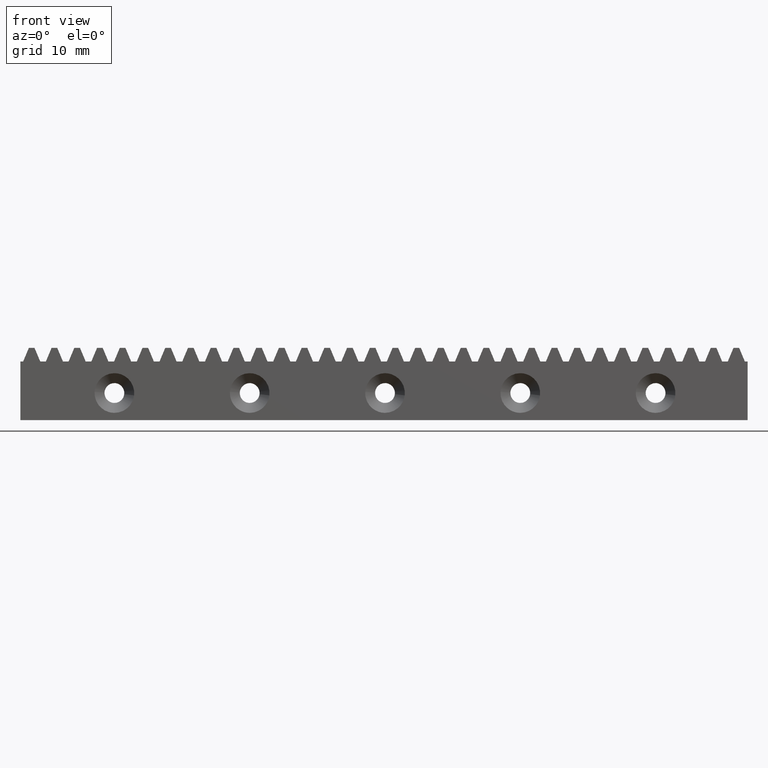
[diagram: clean part render]
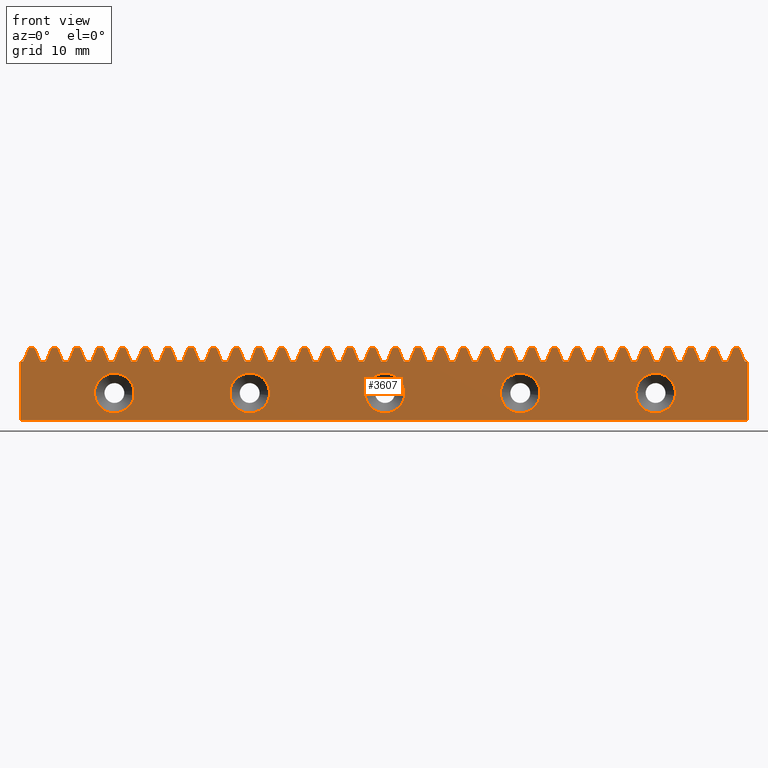
[diagram: same view with one face highlighted and labeled with its STEP entity id]
A machine part, front view. The second image highlights one B-rep face of the part: STEP entity #3607.
In plain terms, the highlighted face is a freeform B-spline surface patch.
Its self-contained STEP definition (entity closure, byte-faithful):
#268=CARTESIAN_POINT('',(-27.815379017619350,-3.000000032600222,2.740324612674224));
#269=VERTEX_POINT('',#268);
#275=CARTESIAN_POINT('',(-30.0,-3.000000000000085,5.200000000000000));
#276=VERTEX_POINT('',#275);
#277=CARTESIAN_POINT('',(-27.815379017619350,-3.000000032600222,2.740324612674225));
#278=CARTESIAN_POINT('',(-27.800000000000001,-3.000000000000085,2.869706868822044));
#279=CARTESIAN_POINT('',(-27.800000000000001,-3.000000000000085,3.0));
#280=CARTESIAN_POINT('',(-27.799999999999997,-3.000000000000085,5.199999999999999));
#281=CARTESIAN_POINT('',(-30.0,-3.000000000000085,5.200000000000000));
#289=(BOUNDED_CURVE()B_SPLINE_CURVE(2,(#277,#278,#279,#280,#281),.UNSPECIFIED.,.F.,.U.)B_SPLINE_CURVE_WITH_KNOTS((3,2,3),(0.229562463113299,0.250000000000000,0.500000000000000),.UNSPECIFIED.)CURVE()GEOMETRIC_REPRESENTATION_ITEM()RATIONAL_B_SPLINE_CURVE((0.956026733798864,0.976055936146541,1.0,0.707106781186548,1.0))REPRESENTATION_ITEM(''));
#290=EDGE_CURVE('',#269,#276,#289,.T.);
#292=CARTESIAN_POINT('',(-32.195896556625840,-3.000000000181611,3.134306788352150));
#293=VERTEX_POINT('',#292);
#294=CARTESIAN_POINT('',(-30.0,-3.000000000000085,5.200000000000000));
#295=CARTESIAN_POINT('',(-32.069553344615954,-3.000000000000084,5.199999999999999));
#296=CARTESIAN_POINT('',(-32.195896556625840,-3.000000000181611,3.134306788352150));
#304=(BOUNDED_CURVE()B_SPLINE_CURVE(2,(#294,#295,#296),.UNSPECIFIED.,.F.,.U.)B_SPLINE_CURVE_WITH_KNOTS((3,3),(0.500000000000000,0.739332962027550),.UNSPECIFIED.)CURVE()GEOMETRIC_REPRESENTATION_ITEM()RATIONAL_B_SPLINE_CURVE((1.0,0.719603993534373,0.976072041213662))REPRESENTATION_ITEM(''));
#305=EDGE_CURVE('',#276,#293,#304,.T.);
#338=CARTESIAN_POINT('',(-30.0,-3.000000000000085,0.800000000000000));
#339=VERTEX_POINT('',#338);
#340=CARTESIAN_POINT('',(-32.195896556625840,-3.000000000181610,3.134306788352150));
#341=CARTESIAN_POINT('',(-32.200000000000010,-3.000000000000086,3.067216080625104));
#342=CARTESIAN_POINT('',(-32.200000000000003,-3.000000000000085,3.0));
#343=CARTESIAN_POINT('',(-32.200000000000010,-3.000000000000085,0.800000000000000));
#344=CARTESIAN_POINT('',(-30.0,-3.000000000000085,0.800000000000000));
#352=(BOUNDED_CURVE()B_SPLINE_CURVE(2,(#340,#341,#342,#343,#344),.UNSPECIFIED.,.F.,.U.)B_SPLINE_CURVE_WITH_KNOTS((3,2,3),(0.739332962027550,0.750000000000000,1.0),.UNSPECIFIED.)CURVE()GEOMETRIC_REPRESENTATION_ITEM()RATIONAL_B_SPLINE_CURVE((0.976072041213663,0.987502787652175,1.0,0.707106781186548,1.0))REPRESENTATION_ITEM(''));
#353=EDGE_CURVE('',#293,#339,#352,.T.);
#355=CARTESIAN_POINT('',(-30.0,-3.000000000000085,0.800000000000000));
#356=CARTESIAN_POINT('',(-28.046016164023627,-3.000000000000084,0.800000000000000));
#357=CARTESIAN_POINT('',(-27.815379017619346,-3.000000032600222,2.740324612674224));
#365=(BOUNDED_CURVE()B_SPLINE_CURVE(2,(#355,#356,#357),.UNSPECIFIED.,.F.,.U.)B_SPLINE_CURVE_WITH_KNOTS((3,3),(0.0,0.229562463113299),.UNSPECIFIED.)CURVE()GEOMETRIC_REPRESENTATION_ITEM()RATIONAL_B_SPLINE_CURVE((1.0,0.731050845040006,0.956026733798864))REPRESENTATION_ITEM(''));
#366=EDGE_CURVE('',#339,#269,#365,.T.);
#596=CARTESIAN_POINT('',(-12.815379017619350,-3.000000032600219,2.740324612674225));
#597=VERTEX_POINT('',#596);
#603=CARTESIAN_POINT('',(-15.0,-3.000000000000085,5.200000000000000));
#604=VERTEX_POINT('',#603);
#605=CARTESIAN_POINT('',(-12.815379017619351,-3.000000032600220,2.740324612674225));
#606=CARTESIAN_POINT('',(-12.799999999999999,-3.000000000000084,2.869706868822044));
#607=CARTESIAN_POINT('',(-12.800000000000001,-3.000000000000085,3.0));
#608=CARTESIAN_POINT('',(-12.799999999999999,-3.000000000000085,5.199999999999999));
#609=CARTESIAN_POINT('',(-15.0,-3.000000000000085,5.200000000000000));
#617=(BOUNDED_CURVE()B_SPLINE_CURVE(2,(#605,#606,#607,#608,#609),.UNSPECIFIED.,.F.,.U.)B_SPLINE_CURVE_WITH_KNOTS((3,2,3),(0.229562463113299,0.250000000000000,0.500000000000000),.UNSPECIFIED.)CURVE()GEOMETRIC_REPRESENTATION_ITEM()RATIONAL_B_SPLINE_CURVE((0.956026733798864,0.976055936146542,1.0,0.707106781186548,1.0))REPRESENTATION_ITEM(''));
#618=EDGE_CURVE('',#597,#604,#617,.T.);
#620=CARTESIAN_POINT('',(-17.195896556625851,-3.000000000181612,3.134306788352149));
#621=VERTEX_POINT('',#620);
#622=CARTESIAN_POINT('',(-15.0,-3.000000000000085,5.200000000000000));
#623=CARTESIAN_POINT('',(-17.069553344615954,-3.000000000000084,5.199999999999999));
#624=CARTESIAN_POINT('',(-17.195896556625847,-3.000000000181612,3.134306788352149));
#632=(BOUNDED_CURVE()B_SPLINE_CURVE(2,(#622,#623,#624),.UNSPECIFIED.,.F.,.U.)B_SPLINE_CURVE_WITH_KNOTS((3,3),(0.500000000000000,0.739332962027550),.UNSPECIFIED.)CURVE()GEOMETRIC_REPRESENTATION_ITEM()RATIONAL_B_SPLINE_CURVE((1.0,0.719603993534373,0.976072041213662))REPRESENTATION_ITEM(''));
#633=EDGE_CURVE('',#604,#621,#632,.T.);
#666=CARTESIAN_POINT('',(-15.0,-3.000000000000085,0.800000000000000));
#667=VERTEX_POINT('',#666);
#668=CARTESIAN_POINT('',(-17.195896556625851,-3.000000000181612,3.134306788352150));
#669=CARTESIAN_POINT('',(-17.199999999999999,-3.000000000000085,3.067216080625104));
#670=CARTESIAN_POINT('',(-17.199999999999999,-3.000000000000085,3.0));
#671=CARTESIAN_POINT('',(-17.200000000000003,-3.000000000000085,0.800000000000000));
#672=CARTESIAN_POINT('',(-15.0,-3.000000000000085,0.800000000000000));
#680=(BOUNDED_CURVE()B_SPLINE_CURVE(2,(#668,#669,#670,#671,#672),.UNSPECIFIED.,.F.,.U.)B_SPLINE_CURVE_WITH_KNOTS((3,2,3),(0.739332962027550,0.750000000000000,1.0),.UNSPECIFIED.)CURVE()GEOMETRIC_REPRESENTATION_ITEM()RATIONAL_B_SPLINE_CURVE((0.976072041213663,0.987502787652176,1.0,0.707106781186548,1.0))REPRESENTATION_ITEM(''));
#681=EDGE_CURVE('',#621,#667,#680,.T.);
#683=CARTESIAN_POINT('',(-15.0,-3.000000000000085,0.800000000000000));
#684=CARTESIAN_POINT('',(-13.046016164023623,-3.000000000000084,0.800000000000000));
#685=CARTESIAN_POINT('',(-12.815379017619351,-3.000000032600220,2.740324612674225));
#693=(BOUNDED_CURVE()B_SPLINE_CURVE(2,(#683,#684,#685),.UNSPECIFIED.,.F.,.U.)B_SPLINE_CURVE_WITH_KNOTS((3,3),(0.0,0.229562463113299),.UNSPECIFIED.)CURVE()GEOMETRIC_REPRESENTATION_ITEM()RATIONAL_B_SPLINE_CURVE((1.0,0.731050845040006,0.956026733798864))REPRESENTATION_ITEM(''));
#694=EDGE_CURVE('',#667,#597,#693,.T.);
#924=CARTESIAN_POINT('',(2.184620982380650,-3.000000032600220,2.740324612674225));
#925=VERTEX_POINT('',#924);
#931=CARTESIAN_POINT('',(0.0,-3.000000000000085,5.200000000000000));
#932=VERTEX_POINT('',#931);
#933=CARTESIAN_POINT('',(2.184620982380650,-3.000000032600220,2.740324612674225));
#934=CARTESIAN_POINT('',(2.200000000000000,-3.000000000000084,2.869706868822044));
#935=CARTESIAN_POINT('',(2.200000000000000,-3.000000000000085,3.0));
#936=CARTESIAN_POINT('',(2.200000000000001,-3.000000000000085,5.199999999999999));
#937=CARTESIAN_POINT('',(0.0,-3.000000000000085,5.200000000000000));
#945=(BOUNDED_CURVE()B_SPLINE_CURVE(2,(#933,#934,#935,#936,#937),.UNSPECIFIED.,.F.,.U.)B_SPLINE_CURVE_WITH_KNOTS((3,2,3),(0.229562463113299,0.250000000000000,0.500000000000000),.UNSPECIFIED.)CURVE()GEOMETRIC_REPRESENTATION_ITEM()RATIONAL_B_SPLINE_CURVE((0.956026733798864,0.976055936146542,1.0,0.707106781186548,1.0))REPRESENTATION_ITEM(''));
#946=EDGE_CURVE('',#925,#932,#945,.T.);
#948=CARTESIAN_POINT('',(-2.195896556625845,-3.000000000181611,3.134306788352150));
#949=VERTEX_POINT('',#948);
#950=CARTESIAN_POINT('',(0.0,-3.000000000000085,5.200000000000000));
#951=CARTESIAN_POINT('',(-2.069553344615954,-3.000000000000084,5.199999999999999));
#952=CARTESIAN_POINT('',(-2.195896556625845,-3.000000000181611,3.134306788352150));
#960=(BOUNDED_CURVE()B_SPLINE_CURVE(2,(#950,#951,#952),.UNSPECIFIED.,.F.,.U.)B_SPLINE_CURVE_WITH_KNOTS((3,3),(0.500000000000000,0.739332962027550),.UNSPECIFIED.)CURVE()GEOMETRIC_REPRESENTATION_ITEM()RATIONAL_B_SPLINE_CURVE((1.0,0.719603993534373,0.976072041213662))REPRESENTATION_ITEM(''));
#961=EDGE_CURVE('',#932,#949,#960,.T.);
#994=CARTESIAN_POINT('',(0.0,-3.000000000000085,0.800000000000000));
#995=VERTEX_POINT('',#994);
#996=CARTESIAN_POINT('',(-2.195896556625845,-3.000000000181610,3.134306788352150));
#997=CARTESIAN_POINT('',(-2.200000000000000,-3.000000000000086,3.067216080625104));
#998=CARTESIAN_POINT('',(-2.200000000000000,-3.000000000000085,3.0));
#999=CARTESIAN_POINT('',(-2.200000000000001,-3.000000000000085,0.800000000000000));
#1000=CARTESIAN_POINT('',(0.0,-3.000000000000085,0.800000000000000));
#1008=(BOUNDED_CURVE()B_SPLINE_CURVE(2,(#996,#997,#998,#999,#1000),.UNSPECIFIED.,.F.,.U.)B_SPLINE_CURVE_WITH_KNOTS((3,2,3),(0.739332962027550,0.750000000000000,1.0),.UNSPECIFIED.)CURVE()GEOMETRIC_REPRESENTATION_ITEM()RATIONAL_B_SPLINE_CURVE((0.976072041213663,0.987502787652175,1.0,0.707106781186548,1.0))REPRESENTATION_ITEM(''));
#1009=EDGE_CURVE('',#949,#995,#1008,.T.);
#1011=CARTESIAN_POINT('',(0.0,-3.000000000000085,0.800000000000000));
#1012=CARTESIAN_POINT('',(1.953983835976376,-3.000000000000084,0.800000000000000));
#1013=CARTESIAN_POINT('',(2.184620982380650,-3.000000032600220,2.740324612674225));
#1021=(BOUNDED_CURVE()B_SPLINE_CURVE(2,(#1011,#1012,#1013),.UNSPECIFIED.,.F.,.U.)B_SPLINE_CURVE_WITH_KNOTS((3,3),(0.0,0.229562463113299),.UNSPECIFIED.)CURVE()GEOMETRIC_REPRESENTATION_ITEM()RATIONAL_B_SPLINE_CURVE((1.0,0.731050845040006,0.956026733798864))REPRESENTATION_ITEM(''));
#1022=EDGE_CURVE('',#995,#925,#1021,.T.);
#1252=CARTESIAN_POINT('',(17.184620982380650,-3.000000032600219,2.740324612674224));
#1253=VERTEX_POINT('',#1252);
#1259=CARTESIAN_POINT('',(15.0,-3.000000000000085,5.200000000000000));
#1260=VERTEX_POINT('',#1259);
#1261=CARTESIAN_POINT('',(17.184620982380650,-3.000000032600219,2.740324612674225));
#1262=CARTESIAN_POINT('',(17.199999999999996,-3.000000000000085,2.869706868822044));
#1263=CARTESIAN_POINT('',(17.199999999999999,-3.000000000000085,3.0));
#1264=CARTESIAN_POINT('',(17.200000000000003,-3.000000000000085,5.199999999999999));
#1265=CARTESIAN_POINT('',(15.0,-3.000000000000085,5.200000000000000));
#1273=(BOUNDED_CURVE()B_SPLINE_CURVE(2,(#1261,#1262,#1263,#1264,#1265),.UNSPECIFIED.,.F.,.U.)B_SPLINE_CURVE_WITH_KNOTS((3,2,3),(0.229562463113299,0.250000000000000,0.500000000000000),.UNSPECIFIED.)CURVE()GEOMETRIC_REPRESENTATION_ITEM()RATIONAL_B_SPLINE_CURVE((0.956026733798864,0.976055936146541,1.0,0.707106781186548,1.0))REPRESENTATION_ITEM(''));
#1274=EDGE_CURVE('',#1253,#1260,#1273,.T.);
#1276=CARTESIAN_POINT('',(12.804103443374149,-3.000000000181611,3.134306788352150));
#1277=VERTEX_POINT('',#1276);
#1278=CARTESIAN_POINT('',(15.0,-3.000000000000085,5.200000000000000));
#1279=CARTESIAN_POINT('',(12.930446655384046,-3.000000000000084,5.199999999999999));
#1280=CARTESIAN_POINT('',(12.804103443374157,-3.000000000181611,3.134306788352150));
#1288=(BOUNDED_CURVE()B_SPLINE_CURVE(2,(#1278,#1279,#1280),.UNSPECIFIED.,.F.,.U.)B_SPLINE_CURVE_WITH_KNOTS((3,3),(0.500000000000000,0.739332962027550),.UNSPECIFIED.)CURVE()GEOMETRIC_REPRESENTATION_ITEM()RATIONAL_B_SPLINE_CURVE((1.0,0.719603993534373,0.976072041213662))REPRESENTATION_ITEM(''));
#1289=EDGE_CURVE('',#1260,#1277,#1288,.T.);
#1322=CARTESIAN_POINT('',(15.0,-3.000000000000085,0.800000000000000));
#1323=VERTEX_POINT('',#1322);
#1324=CARTESIAN_POINT('',(12.804103443374153,-3.000000000181612,3.134306788352150));
#1325=CARTESIAN_POINT('',(12.800000000000004,-3.000000000000086,3.067216080625104));
#1326=CARTESIAN_POINT('',(12.800000000000001,-3.000000000000085,3.0));
#1327=CARTESIAN_POINT('',(12.799999999999999,-3.000000000000085,0.800000000000000));
#1328=CARTESIAN_POINT('',(15.0,-3.000000000000085,0.800000000000000));
#1336=(BOUNDED_CURVE()B_SPLINE_CURVE(2,(#1324,#1325,#1326,#1327,#1328),.UNSPECIFIED.,.F.,.U.)B_SPLINE_CURVE_WITH_KNOTS((3,2,3),(0.739332962027550,0.750000000000000,1.0),.UNSPECIFIED.)CURVE()GEOMETRIC_REPRESENTATION_ITEM()RATIONAL_B_SPLINE_CURVE((0.976072041213663,0.987502787652175,1.0,0.707106781186548,1.0))REPRESENTATION_ITEM(''));
#1337=EDGE_CURVE('',#1277,#1323,#1336,.T.);
#1339=CARTESIAN_POINT('',(15.0,-3.000000000000085,0.800000000000000));
#1340=CARTESIAN_POINT('',(16.953983835976384,-3.000000000000084,0.800000000000000));
#1341=CARTESIAN_POINT('',(17.184620982380657,-3.000000032600220,2.740324612674224));
#1349=(BOUNDED_CURVE()B_SPLINE_CURVE(2,(#1339,#1340,#1341),.UNSPECIFIED.,.F.,.U.)B_SPLINE_CURVE_WITH_KNOTS((3,3),(0.0,0.229562463113299),.UNSPECIFIED.)CURVE()GEOMETRIC_REPRESENTATION_ITEM()RATIONAL_B_SPLINE_CURVE((1.0,0.731050845040006,0.956026733798864))REPRESENTATION_ITEM(''));
#1350=EDGE_CURVE('',#1323,#1253,#1349,.T.);
#1580=CARTESIAN_POINT('',(32.184620982380650,-3.000000032600220,2.740324612674225));
#1581=VERTEX_POINT('',#1580);
#1587=CARTESIAN_POINT('',(30.0,-3.000000000000085,5.200000000000000));
#1588=VERTEX_POINT('',#1587);
#1589=CARTESIAN_POINT('',(32.184620982380650,-3.000000032600220,2.740324612674225));
#1590=CARTESIAN_POINT('',(32.200000000000010,-3.000000000000085,2.869706868822044));
#1591=CARTESIAN_POINT('',(32.200000000000003,-3.000000000000085,3.0));
#1592=CARTESIAN_POINT('',(32.200000000000010,-3.000000000000085,5.199999999999999));
#1593=CARTESIAN_POINT('',(30.0,-3.000000000000085,5.200000000000000));
#1601=(BOUNDED_CURVE()B_SPLINE_CURVE(2,(#1589,#1590,#1591,#1592,#1593),.UNSPECIFIED.,.F.,.U.)B_SPLINE_CURVE_WITH_KNOTS((3,2,3),(0.229562463113299,0.250000000000000,0.500000000000000),.UNSPECIFIED.)CURVE()GEOMETRIC_REPRESENTATION_ITEM()RATIONAL_B_SPLINE_CURVE((0.956026733798864,0.976055936146541,1.0,0.707106781186548,1.0))REPRESENTATION_ITEM(''));
#1602=EDGE_CURVE('',#1581,#1588,#1601,.T.);
#1604=CARTESIAN_POINT('',(27.804103443374149,-3.000000000181613,3.134306788352150));
#1605=VERTEX_POINT('',#1604);
#1606=CARTESIAN_POINT('',(30.0,-3.000000000000085,5.200000000000000));
#1607=CARTESIAN_POINT('',(27.930446655384038,-3.000000000000084,5.199999999999999));
#1608=CARTESIAN_POINT('',(27.804103443374149,-3.000000000181613,3.134306788352150));
#1616=(BOUNDED_CURVE()B_SPLINE_CURVE(2,(#1606,#1607,#1608),.UNSPECIFIED.,.F.,.U.)B_SPLINE_CURVE_WITH_KNOTS((3,3),(0.500000000000000,0.739332962027550),.UNSPECIFIED.)CURVE()GEOMETRIC_REPRESENTATION_ITEM()RATIONAL_B_SPLINE_CURVE((1.0,0.719603993534373,0.976072041213662))REPRESENTATION_ITEM(''));
#1617=EDGE_CURVE('',#1588,#1605,#1616,.T.);
#1650=CARTESIAN_POINT('',(30.0,-3.000000000000085,0.800000000000000));
#1651=VERTEX_POINT('',#1650);
#1652=CARTESIAN_POINT('',(27.804103443374157,-3.000000000181613,3.134306788352150));
#1653=CARTESIAN_POINT('',(27.800000000000001,-3.000000000000086,3.067216080625104));
#1654=CARTESIAN_POINT('',(27.800000000000001,-3.000000000000085,3.0));
#1655=CARTESIAN_POINT('',(27.799999999999997,-3.000000000000085,0.800000000000000));
#1656=CARTESIAN_POINT('',(30.0,-3.000000000000085,0.800000000000000));
#1664=(BOUNDED_CURVE()B_SPLINE_CURVE(2,(#1652,#1653,#1654,#1655,#1656),.UNSPECIFIED.,.F.,.U.)B_SPLINE_CURVE_WITH_KNOTS((3,2,3),(0.739332962027550,0.750000000000000,1.0),.UNSPECIFIED.)CURVE()GEOMETRIC_REPRESENTATION_ITEM()RATIONAL_B_SPLINE_CURVE((0.976072041213663,0.987502787652175,1.0,0.707106781186548,1.0))REPRESENTATION_ITEM(''));
#1665=EDGE_CURVE('',#1605,#1651,#1664,.T.);
#1667=CARTESIAN_POINT('',(30.0,-3.000000000000085,0.800000000000000));
#1668=CARTESIAN_POINT('',(31.953983835976384,-3.000000000000084,0.800000000000000));
#1669=CARTESIAN_POINT('',(32.184620982380650,-3.000000032600220,2.740324612674225));
#1677=(BOUNDED_CURVE()B_SPLINE_CURVE(2,(#1667,#1668,#1669),.UNSPECIFIED.,.F.,.U.)B_SPLINE_CURVE_WITH_KNOTS((3,3),(0.0,0.229562463113299),.UNSPECIFIED.)CURVE()GEOMETRIC_REPRESENTATION_ITEM()RATIONAL_B_SPLINE_CURVE((1.0,0.731050845040006,0.956026733798864))REPRESENTATION_ITEM(''));
#1678=EDGE_CURVE('',#1651,#1581,#1677,.T.);
#2646=CARTESIAN_POINT('',(-44.457968436363323,-3.000000000000085,8.399608008602465));
#2647=CARTESIAN_POINT('',(44.237976320274591,-3.000000000000085,8.399608008602465));
#2648=CARTESIAN_POINT('',(-44.457968436363323,-3.000000000000085,-0.399600580807829));
#2649=CARTESIAN_POINT('',(44.237976320274591,-3.000000000000085,-0.399600580807829));
#2650=B_SPLINE_SURFACE_WITH_KNOTS('',1,1,((#2646,#2648),(#2647,#2649)),.UNSPECIFIED.,.F.,.F.,.U.,(2,2),(2,2),(0.0,88.695944756637914),(0.0,8.799208589410295),.UNSPECIFIED.);
#2651=CARTESIAN_POINT('',(-40.430000999999997,-3.000000000000115,6.500000000000000));
#2652=VERTEX_POINT('',#2651);
#2653=CARTESIAN_POINT('',(-40.430000999999997,-3.000000000000115,0.0));
#2654=VERTEX_POINT('',#2653);
#2655=CARTESIAN_POINT('',(-40.430000999999997,-3.000000000000115,6.500000000000000));
#2656=CARTESIAN_POINT('',(-40.430000999999997,-3.000000000000115,0.0));
#2657=QUASI_UNIFORM_CURVE('',1,(#2655,#2656),.UNSPECIFIED.,.F.,.U.);
#2658=EDGE_CURVE('',#2652,#2654,#2657,.T.);
#2659=ORIENTED_EDGE('',*,*,#2658,.T.);
#2660=CARTESIAN_POINT('',(40.210005999999893,-3.000000000000115,0.0));
#2661=VERTEX_POINT('',#2660);
#2662=CARTESIAN_POINT('',(-40.430000999999997,-3.000000000000115,0.0));
#2663=CARTESIAN_POINT('',(40.210005999999893,-3.000000000000115,0.0));
#2664=QUASI_UNIFORM_CURVE('',1,(#2662,#2663),.UNSPECIFIED.,.F.,.U.);
#2665=EDGE_CURVE('',#2654,#2661,#2664,.T.);
#2666=ORIENTED_EDGE('',*,*,#2665,.T.);
#2667=CARTESIAN_POINT('',(40.210005999999893,-3.000000000000115,6.500000000000000));
#2668=VERTEX_POINT('',#2667);
#2669=CARTESIAN_POINT('',(40.210005999999893,-3.000000000000115,0.0));
#2670=CARTESIAN_POINT('',(40.210005999999893,-3.000000000000115,6.500000000000000));
#2671=QUASI_UNIFORM_CURVE('',1,(#2669,#2670),.UNSPECIFIED.,.F.,.U.);
#2672=EDGE_CURVE('',#2661,#2668,#2671,.T.);
#2673=ORIENTED_EDGE('',*,*,#2672,.T.);
#2674=CARTESIAN_POINT('',(39.895003999999901,-3.000000000000115,6.500000000000000));
#2675=VERTEX_POINT('',#2674);
#2676=CARTESIAN_POINT('',(40.210005999999893,-3.000000000000115,6.500000000000000));
#2677=CARTESIAN_POINT('',(39.895003999999901,-3.000000000000115,6.500000000000000));
#2678=QUASI_UNIFORM_CURVE('',1,(#2676,#2677),.UNSPECIFIED.,.F.,.U.);
#2679=EDGE_CURVE('',#2668,#2675,#2678,.T.);
#2680=ORIENTED_EDGE('',*,*,#2679,.T.);
#2681=CARTESIAN_POINT('',(39.264998999999797,-3.000000000000115,8.0));
#2682=VERTEX_POINT('',#2681);
#2683=CARTESIAN_POINT('',(39.895003999999901,-3.000000000000115,6.500000000000000));
#2684=CARTESIAN_POINT('',(39.264998999999797,-3.000000000000115,8.0));
#2685=QUASI_UNIFORM_CURVE('',1,(#2683,#2684),.UNSPECIFIED.,.F.,.U.);
#2686=EDGE_CURVE('',#2675,#2682,#2685,.T.);
#2687=ORIENTED_EDGE('',*,*,#2686,.T.);
#2688=CARTESIAN_POINT('',(38.635008999999897,-3.000000000000115,8.0));
#2689=VERTEX_POINT('',#2688);
#2690=CARTESIAN_POINT('',(39.264998999999797,-3.000000000000115,8.0));
#2691=CARTESIAN_POINT('',(38.635008999999897,-3.000000000000115,8.0));
#2692=QUASI_UNIFORM_CURVE('',1,(#2690,#2691),.UNSPECIFIED.,.F.,.U.);
#2693=EDGE_CURVE('',#2682,#2689,#2692,.T.);
#2694=ORIENTED_EDGE('',*,*,#2693,.T.);
#2695=CARTESIAN_POINT('',(38.005004999999997,-3.000000000000115,6.500007999999800));
#2696=VERTEX_POINT('',#2695);
#2697=CARTESIAN_POINT('',(38.635008999999897,-3.000000000000115,8.0));
#2698=CARTESIAN_POINT('',(38.005004999999997,-3.000000000000115,6.500007999999800));
#2699=QUASI_UNIFORM_CURVE('',1,(#2697,#2698),.UNSPECIFIED.,.F.,.U.);
#2700=EDGE_CURVE('',#2689,#2696,#2699,.T.);
#2701=ORIENTED_EDGE('',*,*,#2700,.T.);
#2702=CARTESIAN_POINT('',(37.375000000000000,-3.000000000000115,6.500000000000000));
#2703=VERTEX_POINT('',#2702);
#2704=CARTESIAN_POINT('',(38.005004999999997,-3.000000000000115,6.500007999999800));
#2705=CARTESIAN_POINT('',(37.375000000000000,-3.000000000000115,6.500000000000000));
#2706=QUASI_UNIFORM_CURVE('',1,(#2704,#2705),.UNSPECIFIED.,.F.,.U.);
#2707=EDGE_CURVE('',#2696,#2703,#2706,.T.);
#2708=ORIENTED_EDGE('',*,*,#2707,.T.);
#2709=CARTESIAN_POINT('',(36.745013359928649,-3.000000000000115,8.0));
#2710=VERTEX_POINT('',#2709);
#2711=CARTESIAN_POINT('',(37.375000000000000,-3.000000000000115,6.500000000000000));
#2712=CARTESIAN_POINT('',(36.745013359928649,-3.000000000000115,8.0));
#2713=QUASI_UNIFORM_CURVE('',1,(#2711,#2712),.UNSPECIFIED.,.F.,.U.);
#2714=EDGE_CURVE('',#2703,#2710,#2713,.T.);
#2715=ORIENTED_EDGE('',*,*,#2714,.T.);
#2716=CARTESIAN_POINT('',(36.115004999999996,-3.000000000000115,8.0));
#2717=VERTEX_POINT('',#2716);
#2718=CARTESIAN_POINT('',(36.745013359928649,-3.000000000000115,8.0));
#2719=CARTESIAN_POINT('',(36.115004999999996,-3.000000000000115,8.0));
#2720=QUASI_UNIFORM_CURVE('',1,(#2718,#2719),.UNSPECIFIED.,.F.,.U.);
#2721=EDGE_CURVE('',#2710,#2717,#2720,.T.);
#2722=ORIENTED_EDGE('',*,*,#2721,.T.);
#2723=CARTESIAN_POINT('',(35.484999999999999,-3.000000000000115,6.500000000000000));
#2724=VERTEX_POINT('',#2723);
#2725=CARTESIAN_POINT('',(36.115004999999996,-3.000000000000115,8.0));
#2726=CARTESIAN_POINT('',(35.484999999999999,-3.000000000000115,6.500000000000000));
#2727=QUASI_UNIFORM_CURVE('',1,(#2725,#2726),.UNSPECIFIED.,.F.,.U.);
#2728=EDGE_CURVE('',#2717,#2724,#2727,.T.);
#2729=ORIENTED_EDGE('',*,*,#2728,.T.);
#2730=CARTESIAN_POINT('',(34.855010999999891,-3.000000000000115,6.500000000000000));
#2731=VERTEX_POINT('',#2730);
#2732=CARTESIAN_POINT('',(35.484999999999999,-3.000000000000115,6.500000000000000));
#2733=CARTESIAN_POINT('',(34.855010999999891,-3.000000000000115,6.500000000000000));
#2734=QUASI_UNIFORM_CURVE('',1,(#2732,#2733),.UNSPECIFIED.,.F.,.U.);
#2735=EDGE_CURVE('',#2724,#2731,#2734,.T.);
#2736=ORIENTED_EDGE('',*,*,#2735,.T.);
#2737=CARTESIAN_POINT('',(34.225006000000000,-3.000000000000115,8.000007999999800));
#2738=VERTEX_POINT('',#2737);
#2739=CARTESIAN_POINT('',(34.855010999999891,-3.000000000000115,6.500000000000000));
#2740=CARTESIAN_POINT('',(34.225006000000000,-3.000000000000115,8.000007999999800));
#2741=QUASI_UNIFORM_CURVE('',1,(#2739,#2740),.UNSPECIFIED.,.F.,.U.);
#2742=EDGE_CURVE('',#2731,#2738,#2741,.T.);
#2743=ORIENTED_EDGE('',*,*,#2742,.T.);
#2744=CARTESIAN_POINT('',(33.595000999999897,-3.000000000000115,8.0));
#2745=VERTEX_POINT('',#2744);
#2746=CARTESIAN_POINT('',(34.225006000000000,-3.000000000000115,8.000007999999800));
#2747=CARTESIAN_POINT('',(33.595000999999897,-3.000000000000115,8.0));
#2748=QUASI_UNIFORM_CURVE('',1,(#2746,#2747),.UNSPECIFIED.,.F.,.U.);
#2749=EDGE_CURVE('',#2738,#2745,#2748,.T.);
#2750=ORIENTED_EDGE('',*,*,#2749,.T.);
#2751=CARTESIAN_POINT('',(32.964995999999800,-3.000000000000115,6.500000000000000));
#2752=VERTEX_POINT('',#2751);
#2753=CARTESIAN_POINT('',(33.595000999999897,-3.000000000000115,8.0));
#2754=CARTESIAN_POINT('',(32.964995999999800,-3.000000000000115,6.500000000000000));
#2755=QUASI_UNIFORM_CURVE('',1,(#2753,#2754),.UNSPECIFIED.,.F.,.U.);
#2756=EDGE_CURVE('',#2745,#2752,#2755,.T.);
#2757=ORIENTED_EDGE('',*,*,#2756,.T.);
#2758=CARTESIAN_POINT('',(32.335005999999893,-3.000000000000115,6.500000000000000));
#2759=VERTEX_POINT('',#2758);
#2760=CARTESIAN_POINT('',(32.964995999999800,-3.000000000000115,6.500000000000000));
#2761=CARTESIAN_POINT('',(32.335005999999893,-3.000000000000115,6.500000000000000));
#2762=QUASI_UNIFORM_CURVE('',1,(#2760,#2761),.UNSPECIFIED.,.F.,.U.);
#2763=EDGE_CURVE('',#2752,#2759,#2762,.T.);
#2764=ORIENTED_EDGE('',*,*,#2763,.T.);
#2765=CARTESIAN_POINT('',(31.705001999999801,-3.000000000000115,8.000007999999800));
#2766=VERTEX_POINT('',#2765);
#2767=CARTESIAN_POINT('',(32.335005999999893,-3.000000000000115,6.500000000000000));
#2768=CARTESIAN_POINT('',(31.705001999999801,-3.000000000000115,8.000007999999800));
#2769=QUASI_UNIFORM_CURVE('',1,(#2767,#2768),.UNSPECIFIED.,.F.,.U.);
#2770=EDGE_CURVE('',#2759,#2766,#2769,.T.);
#2771=ORIENTED_EDGE('',*,*,#2770,.T.);
#2772=CARTESIAN_POINT('',(31.074996999999801,-3.000000000000115,8.0));
#2773=VERTEX_POINT('',#2772);
#2774=CARTESIAN_POINT('',(31.705001999999801,-3.000000000000115,8.000007999999800));
#2775=CARTESIAN_POINT('',(31.074996999999801,-3.000000000000115,8.0));
#2776=QUASI_UNIFORM_CURVE('',1,(#2774,#2775),.UNSPECIFIED.,.F.,.U.);
#2777=EDGE_CURVE('',#2766,#2773,#2776,.T.);
#2778=ORIENTED_EDGE('',*,*,#2777,.T.);
#2779=CARTESIAN_POINT('',(30.445006999999801,-3.000000000000115,6.499992000000000));
#2780=VERTEX_POINT('',#2779);
#2781=CARTESIAN_POINT('',(31.074996999999801,-3.000000000000115,8.0));
#2782=CARTESIAN_POINT('',(30.445006999999801,-3.000000000000115,6.499992000000000));
#2783=QUASI_UNIFORM_CURVE('',1,(#2781,#2782),.UNSPECIFIED.,.F.,.U.);
#2784=EDGE_CURVE('',#2773,#2780,#2783,.T.);
#2785=ORIENTED_EDGE('',*,*,#2784,.T.);
#2786=CARTESIAN_POINT('',(29.815001999999801,-3.000000000000115,6.500000000000000));
#2787=VERTEX_POINT('',#2786);
#2788=CARTESIAN_POINT('',(30.445006999999801,-3.000000000000115,6.499992000000000));
#2789=CARTESIAN_POINT('',(29.815001999999801,-3.000000000000115,6.500000000000000));
#2790=QUASI_UNIFORM_CURVE('',1,(#2788,#2789),.UNSPECIFIED.,.F.,.U.);
#2791=EDGE_CURVE('',#2780,#2787,#2790,.T.);
#2792=ORIENTED_EDGE('',*,*,#2791,.T.);
#2793=CARTESIAN_POINT('',(29.185011999999901,-3.000000000000115,8.0));
#2794=VERTEX_POINT('',#2793);
#2795=CARTESIAN_POINT('',(29.815001999999801,-3.000000000000115,6.500000000000000));
#2796=CARTESIAN_POINT('',(29.185011999999901,-3.000000000000115,8.0));
#2797=QUASI_UNIFORM_CURVE('',1,(#2795,#2796),.UNSPECIFIED.,.F.,.U.);
#2798=EDGE_CURVE('',#2787,#2794,#2797,.T.);
#2799=ORIENTED_EDGE('',*,*,#2798,.T.);
#2800=CARTESIAN_POINT('',(28.555008000000001,-3.000000000000115,8.0));
#2801=VERTEX_POINT('',#2800);
#2802=CARTESIAN_POINT('',(29.185011999999901,-3.000000000000115,8.0));
#2803=CARTESIAN_POINT('',(28.555008000000001,-3.000000000000115,8.0));
#2804=QUASI_UNIFORM_CURVE('',1,(#2802,#2803),.UNSPECIFIED.,.F.,.U.);
#2805=EDGE_CURVE('',#2794,#2801,#2804,.T.);
#2806=ORIENTED_EDGE('',*,*,#2805,.T.);
#2807=CARTESIAN_POINT('',(27.925003000000000,-3.000000000000115,6.500007999999800));
#2808=VERTEX_POINT('',#2807);
#2809=CARTESIAN_POINT('',(28.555008000000001,-3.000000000000115,8.0));
#2810=CARTESIAN_POINT('',(27.925003000000000,-3.000000000000115,6.500007999999800));
#2811=QUASI_UNIFORM_CURVE('',1,(#2809,#2810),.UNSPECIFIED.,.F.,.U.);
#2812=EDGE_CURVE('',#2801,#2808,#2811,.T.);
#2813=ORIENTED_EDGE('',*,*,#2812,.T.);
#2814=CARTESIAN_POINT('',(27.294997999999900,-3.000000000000115,6.500000000000000));
#2815=VERTEX_POINT('',#2814);
#2816=CARTESIAN_POINT('',(27.925003000000000,-3.000000000000115,6.500007999999800));
#2817=CARTESIAN_POINT('',(27.294997999999900,-3.000000000000115,6.500000000000000));
#2818=QUASI_UNIFORM_CURVE('',1,(#2816,#2817),.UNSPECIFIED.,.F.,.U.);
#2819=EDGE_CURVE('',#2808,#2815,#2818,.T.);
#2820=ORIENTED_EDGE('',*,*,#2819,.T.);
#2821=CARTESIAN_POINT('',(26.665008000000000,-3.000000000000115,8.0));
#2822=VERTEX_POINT('',#2821);
#2823=CARTESIAN_POINT('',(27.294997999999900,-3.000000000000115,6.500000000000000));
#2824=CARTESIAN_POINT('',(26.665008000000000,-3.000000000000115,8.0));
#2825=QUASI_UNIFORM_CURVE('',1,(#2823,#2824),.UNSPECIFIED.,.F.,.U.);
#2826=EDGE_CURVE('',#2815,#2822,#2825,.T.);
#2827=ORIENTED_EDGE('',*,*,#2826,.T.);
#2828=CARTESIAN_POINT('',(26.035002999999900,-3.000000000000115,8.0));
#2829=VERTEX_POINT('',#2828);
#2830=CARTESIAN_POINT('',(26.665008000000000,-3.000000000000115,8.0));
#2831=CARTESIAN_POINT('',(26.035002999999900,-3.000000000000115,8.0));
#2832=QUASI_UNIFORM_CURVE('',1,(#2830,#2831),.UNSPECIFIED.,.F.,.U.);
#2833=EDGE_CURVE('',#2822,#2829,#2832,.T.);
#2834=ORIENTED_EDGE('',*,*,#2833,.T.);
#2835=CARTESIAN_POINT('',(25.404997999999999,-3.000000000000115,6.500000000000000));
#2836=VERTEX_POINT('',#2835);
#2837=CARTESIAN_POINT('',(26.035002999999900,-3.000000000000115,8.0));
#2838=CARTESIAN_POINT('',(25.404997999999999,-3.000000000000115,6.500000000000000));
#2839=QUASI_UNIFORM_CURVE('',1,(#2837,#2838),.UNSPECIFIED.,.F.,.U.);
#2840=EDGE_CURVE('',#2829,#2836,#2839,.T.);
#2841=ORIENTED_EDGE('',*,*,#2840,.T.);
#2842=CARTESIAN_POINT('',(24.775009000000001,-3.000000000000115,6.500000000000000));
#2843=VERTEX_POINT('',#2842);
#2844=CARTESIAN_POINT('',(25.404997999999999,-3.000000000000115,6.500000000000000));
#2845=CARTESIAN_POINT('',(24.775009000000001,-3.000000000000115,6.500000000000000));
#2846=QUASI_UNIFORM_CURVE('',1,(#2844,#2845),.UNSPECIFIED.,.F.,.U.);
#2847=EDGE_CURVE('',#2836,#2843,#2846,.T.);
#2848=ORIENTED_EDGE('',*,*,#2847,.T.);
#2849=CARTESIAN_POINT('',(24.145003999999901,-3.000000000000115,8.0));
#2850=VERTEX_POINT('',#2849);
#2851=CARTESIAN_POINT('',(24.775009000000001,-3.000000000000115,6.500000000000000));
#2852=CARTESIAN_POINT('',(24.145003999999901,-3.000000000000115,8.0));
#2853=QUASI_UNIFORM_CURVE('',1,(#2851,#2852),.UNSPECIFIED.,.F.,.U.);
#2854=EDGE_CURVE('',#2843,#2850,#2853,.T.);
#2855=ORIENTED_EDGE('',*,*,#2854,.T.);
#2856=CARTESIAN_POINT('',(23.514998999999801,-3.000000000000115,8.0));
#2857=VERTEX_POINT('',#2856);
#2858=CARTESIAN_POINT('',(24.145003999999901,-3.000000000000115,8.0));
#2859=CARTESIAN_POINT('',(23.514998999999801,-3.000000000000115,8.0));
#2860=QUASI_UNIFORM_CURVE('',1,(#2858,#2859),.UNSPECIFIED.,.F.,.U.);
#2861=EDGE_CURVE('',#2850,#2857,#2860,.T.);
#2862=ORIENTED_EDGE('',*,*,#2861,.T.);
#2863=CARTESIAN_POINT('',(22.885008999999901,-3.000000000000115,6.500000000000000));
#2864=VERTEX_POINT('',#2863);
#2865=CARTESIAN_POINT('',(23.514998999999801,-3.000000000000115,8.0));
#2866=CARTESIAN_POINT('',(22.885008999999901,-3.000000000000115,6.500000000000000));
#2867=QUASI_UNIFORM_CURVE('',1,(#2865,#2866),.UNSPECIFIED.,.F.,.U.);
#2868=EDGE_CURVE('',#2857,#2864,#2867,.T.);
#2869=ORIENTED_EDGE('',*,*,#2868,.T.);
#2870=CARTESIAN_POINT('',(22.255005000000001,-3.000000000000115,6.500000000000000));
#2871=VERTEX_POINT('',#2870);
#2872=CARTESIAN_POINT('',(22.885008999999901,-3.000000000000115,6.500000000000000));
#2873=CARTESIAN_POINT('',(22.255005000000001,-3.000000000000115,6.500000000000000));
#2874=QUASI_UNIFORM_CURVE('',1,(#2872,#2873),.UNSPECIFIED.,.F.,.U.);
#2875=EDGE_CURVE('',#2864,#2871,#2874,.T.);
#2876=ORIENTED_EDGE('',*,*,#2875,.T.);
#2877=CARTESIAN_POINT('',(21.625000000000000,-3.000000000000115,8.0));
#2878=VERTEX_POINT('',#2877);
#2879=CARTESIAN_POINT('',(22.255005000000001,-3.000000000000115,6.500000000000000));
#2880=CARTESIAN_POINT('',(21.625000000000000,-3.000000000000115,8.0));
#2881=QUASI_UNIFORM_CURVE('',1,(#2879,#2880),.UNSPECIFIED.,.F.,.U.);
#2882=EDGE_CURVE('',#2871,#2878,#2881,.T.);
#2883=ORIENTED_EDGE('',*,*,#2882,.T.);
#2884=CARTESIAN_POINT('',(20.995010000000001,-3.000000000000115,8.0));
#2885=VERTEX_POINT('',#2884);
#2886=CARTESIAN_POINT('',(21.625000000000000,-3.000000000000115,8.0));
#2887=CARTESIAN_POINT('',(20.995010000000001,-3.000000000000115,8.0));
#2888=QUASI_UNIFORM_CURVE('',1,(#2886,#2887),.UNSPECIFIED.,.F.,.U.);
#2889=EDGE_CURVE('',#2878,#2885,#2888,.T.);
#2890=ORIENTED_EDGE('',*,*,#2889,.T.);
#2891=CARTESIAN_POINT('',(20.365004999999901,-3.000000000000115,6.500007999999800));
#2892=VERTEX_POINT('',#2891);
#2893=CARTESIAN_POINT('',(20.995010000000001,-3.000000000000115,8.0));
#2894=CARTESIAN_POINT('',(20.365004999999901,-3.000000000000115,6.500007999999800));
#2895=QUASI_UNIFORM_CURVE('',1,(#2893,#2894),.UNSPECIFIED.,.F.,.U.);
#2896=EDGE_CURVE('',#2885,#2892,#2895,.T.);
#2897=ORIENTED_EDGE('',*,*,#2896,.T.);
#2898=CARTESIAN_POINT('',(19.734999999999999,-3.000000000000115,6.500000000000000));
#2899=VERTEX_POINT('',#2898);
#2900=CARTESIAN_POINT('',(20.365004999999901,-3.000000000000115,6.500007999999800));
#2901=CARTESIAN_POINT('',(19.734999999999999,-3.000000000000115,6.500000000000000));
#2902=QUASI_UNIFORM_CURVE('',1,(#2900,#2901),.UNSPECIFIED.,.F.,.U.);
#2903=EDGE_CURVE('',#2892,#2899,#2902,.T.);
#2904=ORIENTED_EDGE('',*,*,#2903,.T.);
#2905=CARTESIAN_POINT('',(19.105010999999902,-3.000000000000115,8.0));
#2906=VERTEX_POINT('',#2905);
#2907=CARTESIAN_POINT('',(19.734999999999999,-3.000000000000115,6.500000000000000));
#2908=CARTESIAN_POINT('',(19.105010999999902,-3.000000000000115,8.0));
#2909=QUASI_UNIFORM_CURVE('',1,(#2907,#2908),.UNSPECIFIED.,.F.,.U.);
#2910=EDGE_CURVE('',#2899,#2906,#2909,.T.);
#2911=ORIENTED_EDGE('',*,*,#2910,.T.);
#2912=CARTESIAN_POINT('',(18.475006000000000,-3.000000000000115,8.0));
#2913=VERTEX_POINT('',#2912);
#2914=CARTESIAN_POINT('',(19.105010999999902,-3.000000000000115,8.0));
#2915=CARTESIAN_POINT('',(18.475006000000000,-3.000000000000115,8.0));
#2916=QUASI_UNIFORM_CURVE('',1,(#2914,#2915),.UNSPECIFIED.,.F.,.U.);
#2917=EDGE_CURVE('',#2906,#2913,#2916,.T.);
#2918=ORIENTED_EDGE('',*,*,#2917,.T.);
#2919=CARTESIAN_POINT('',(17.845001000000000,-3.000000000000115,6.500007999999800));
#2920=VERTEX_POINT('',#2919);
#2921=CARTESIAN_POINT('',(18.475006000000000,-3.000000000000115,8.0));
#2922=CARTESIAN_POINT('',(17.845001000000000,-3.000000000000115,6.500007999999800));
#2923=QUASI_UNIFORM_CURVE('',1,(#2921,#2922),.UNSPECIFIED.,.F.,.U.);
#2924=EDGE_CURVE('',#2913,#2920,#2923,.T.);
#2925=ORIENTED_EDGE('',*,*,#2924,.T.);
#2926=CARTESIAN_POINT('',(17.215011000000001,-3.000000000000115,6.500000000000000));
#2927=VERTEX_POINT('',#2926);
#2928=CARTESIAN_POINT('',(17.845001000000000,-3.000000000000115,6.500007999999800));
#2929=CARTESIAN_POINT('',(17.215011000000001,-3.000000000000115,6.500000000000000));
#2930=QUASI_UNIFORM_CURVE('',1,(#2928,#2929),.UNSPECIFIED.,.F.,.U.);
#2931=EDGE_CURVE('',#2920,#2927,#2930,.T.);
#2932=ORIENTED_EDGE('',*,*,#2931,.T.);
#2933=CARTESIAN_POINT('',(16.585005999999900,-3.000000000000115,8.000007999999800));
#2934=VERTEX_POINT('',#2933);
#2935=CARTESIAN_POINT('',(17.215011000000001,-3.000000000000115,6.500000000000000));
#2936=CARTESIAN_POINT('',(16.585005999999900,-3.000000000000115,8.000007999999800));
#2937=QUASI_UNIFORM_CURVE('',1,(#2935,#2936),.UNSPECIFIED.,.F.,.U.);
#2938=EDGE_CURVE('',#2927,#2934,#2937,.T.);
#2939=ORIENTED_EDGE('',*,*,#2938,.T.);
#2940=CARTESIAN_POINT('',(15.955002000000000,-3.000000000000115,8.0));
#2941=VERTEX_POINT('',#2940);
#2942=CARTESIAN_POINT('',(16.585005999999900,-3.000000000000115,8.000007999999800));
#2943=CARTESIAN_POINT('',(15.955002000000000,-3.000000000000115,8.0));
#2944=QUASI_UNIFORM_CURVE('',1,(#2942,#2943),.UNSPECIFIED.,.F.,.U.);
#2945=EDGE_CURVE('',#2934,#2941,#2944,.T.);
#2946=ORIENTED_EDGE('',*,*,#2945,.T.);
#2947=CARTESIAN_POINT('',(15.324996999999900,-3.000000000000115,6.500000000000000));
#2948=VERTEX_POINT('',#2947);
#2949=CARTESIAN_POINT('',(15.955002000000000,-3.000000000000115,8.0));
#2950=CARTESIAN_POINT('',(15.324996999999900,-3.000000000000115,6.500000000000000));
#2951=QUASI_UNIFORM_CURVE('',1,(#2949,#2950),.UNSPECIFIED.,.F.,.U.);
#2952=EDGE_CURVE('',#2941,#2948,#2951,.T.);
#2953=ORIENTED_EDGE('',*,*,#2952,.T.);
#2954=CARTESIAN_POINT('',(14.695007000000000,-3.000000000000115,6.500000000000000));
#2955=VERTEX_POINT('',#2954);
#2956=CARTESIAN_POINT('',(15.324996999999900,-3.000000000000115,6.500000000000000));
#2957=CARTESIAN_POINT('',(14.695007000000000,-3.000000000000115,6.500000000000000));
#2958=QUASI_UNIFORM_CURVE('',1,(#2956,#2957),.UNSPECIFIED.,.F.,.U.);
#2959=EDGE_CURVE('',#2948,#2955,#2958,.T.);
#2960=ORIENTED_EDGE('',*,*,#2959,.T.);
#2961=CARTESIAN_POINT('',(14.065001999999801,-3.000000000000115,8.000007999999800));
#2962=VERTEX_POINT('',#2961);
#2963=CARTESIAN_POINT('',(14.695007000000000,-3.000000000000115,6.500000000000000));
#2964=CARTESIAN_POINT('',(14.065001999999801,-3.000000000000115,8.000007999999800));
#2965=QUASI_UNIFORM_CURVE('',1,(#2963,#2964),.UNSPECIFIED.,.F.,.U.);
#2966=EDGE_CURVE('',#2955,#2962,#2965,.T.);
#2967=ORIENTED_EDGE('',*,*,#2966,.T.);
#2968=CARTESIAN_POINT('',(13.435004999999901,-3.000000000000115,8.0));
#2969=VERTEX_POINT('',#2968);
#2970=CARTESIAN_POINT('',(14.065001999999801,-3.000000000000115,8.000007999999800));
#2971=CARTESIAN_POINT('',(13.435004999999901,-3.000000000000115,8.0));
#2972=QUASI_UNIFORM_CURVE('',1,(#2970,#2971),.UNSPECIFIED.,.F.,.U.);
#2973=EDGE_CURVE('',#2962,#2969,#2972,.T.);
#2974=ORIENTED_EDGE('',*,*,#2973,.T.);
#2975=CARTESIAN_POINT('',(12.804999999999801,-3.000000000000115,6.500000000000000));
#2976=VERTEX_POINT('',#2975);
#2977=CARTESIAN_POINT('',(13.435004999999901,-3.000000000000115,8.0));
#2978=CARTESIAN_POINT('',(12.804999999999801,-3.000000000000115,6.500000000000000));
#2979=QUASI_UNIFORM_CURVE('',1,(#2977,#2978),.UNSPECIFIED.,.F.,.U.);
#2980=EDGE_CURVE('',#2969,#2976,#2979,.T.);
#2981=ORIENTED_EDGE('',*,*,#2980,.T.);
#2982=CARTESIAN_POINT('',(12.175003000000000,-3.000000000000115,6.500000000000000));
#2983=VERTEX_POINT('',#2982);
#2984=CARTESIAN_POINT('',(12.804999999999801,-3.000000000000115,6.500000000000000));
#2985=CARTESIAN_POINT('',(12.175003000000000,-3.000000000000115,6.500000000000000));
#2986=QUASI_UNIFORM_CURVE('',1,(#2984,#2985),.UNSPECIFIED.,.F.,.U.);
#2987=EDGE_CURVE('',#2976,#2983,#2986,.T.);
#2988=ORIENTED_EDGE('',*,*,#2987,.T.);
#2989=CARTESIAN_POINT('',(11.545005000000000,-3.000000000000115,8.000007999999800));
#2990=VERTEX_POINT('',#2989);
#2991=CARTESIAN_POINT('',(12.175003000000000,-3.000000000000115,6.500000000000000));
#2992=CARTESIAN_POINT('',(11.545005000000000,-3.000000000000115,8.000007999999800));
#2993=QUASI_UNIFORM_CURVE('',1,(#2991,#2992),.UNSPECIFIED.,.F.,.U.);
#2994=EDGE_CURVE('',#2983,#2990,#2993,.T.);
#2995=ORIENTED_EDGE('',*,*,#2994,.T.);
#2996=CARTESIAN_POINT('',(10.915001000000000,-3.000000000000115,8.0));
#2997=VERTEX_POINT('',#2996);
#2998=CARTESIAN_POINT('',(11.545005000000000,-3.000000000000115,8.000007999999800));
#2999=CARTESIAN_POINT('',(10.915001000000000,-3.000000000000115,8.0));
#3000=QUASI_UNIFORM_CURVE('',1,(#2998,#2999),.UNSPECIFIED.,.F.,.U.);
#3001=EDGE_CURVE('',#2990,#2997,#3000,.T.);
#3002=ORIENTED_EDGE('',*,*,#3001,.T.);
#3003=CARTESIAN_POINT('',(10.285002999999900,-3.000000000000115,6.500007999999800));
#3004=VERTEX_POINT('',#3003);
#3005=CARTESIAN_POINT('',(10.915001000000000,-3.000000000000115,8.0));
#3006=CARTESIAN_POINT('',(10.285002999999900,-3.000000000000115,6.500007999999800));
#3007=QUASI_UNIFORM_CURVE('',1,(#3005,#3006),.UNSPECIFIED.,.F.,.U.);
#3008=EDGE_CURVE('',#2997,#3004,#3007,.T.);
#3009=ORIENTED_EDGE('',*,*,#3008,.T.);
#3010=CARTESIAN_POINT('',(9.655009359983920,-3.000000000000115,6.500000000000000));
#3011=VERTEX_POINT('',#3010);
#3012=CARTESIAN_POINT('',(10.285002999999900,-3.000000000000115,6.500007999999800));
#3013=CARTESIAN_POINT('',(9.655009359983920,-3.000000000000115,6.500000000000000));
#3014=QUASI_UNIFORM_CURVE('',1,(#3012,#3013),.UNSPECIFIED.,.F.,.U.);
#3015=EDGE_CURVE('',#3004,#3011,#3014,.T.);
#3016=ORIENTED_EDGE('',*,*,#3015,.T.);
#3017=CARTESIAN_POINT('',(9.025012359983810,-3.000000000000115,8.0));
#3018=VERTEX_POINT('',#3017);
#3019=CARTESIAN_POINT('',(9.655009359983920,-3.000000000000115,6.500000000000000));
#3020=CARTESIAN_POINT('',(9.025012359983810,-3.000000000000115,8.0));
#3021=QUASI_UNIFORM_CURVE('',1,(#3019,#3020),.UNSPECIFIED.,.F.,.U.);
#3022=EDGE_CURVE('',#3011,#3018,#3021,.T.);
#3023=ORIENTED_EDGE('',*,*,#3022,.T.);
#3024=CARTESIAN_POINT('',(8.395004000000000,-3.000000000000115,8.0));
#3025=VERTEX_POINT('',#3024);
#3026=CARTESIAN_POINT('',(9.025012359983810,-3.000000000000115,8.0));
#3027=CARTESIAN_POINT('',(8.395004000000000,-3.000000000000115,8.0));
#3028=QUASI_UNIFORM_CURVE('',1,(#3026,#3027),.UNSPECIFIED.,.F.,.U.);
#3029=EDGE_CURVE('',#3018,#3025,#3028,.T.);
#3030=ORIENTED_EDGE('',*,*,#3029,.T.);
#3031=CARTESIAN_POINT('',(7.765006999999800,-3.000000000000115,6.500000000000000));
#3032=VERTEX_POINT('',#3031);
#3033=CARTESIAN_POINT('',(8.395004000000000,-3.000000000000115,8.0));
#3034=CARTESIAN_POINT('',(7.765006999999800,-3.000000000000115,6.500000000000000));
#3035=QUASI_UNIFORM_CURVE('',1,(#3033,#3034),.UNSPECIFIED.,.F.,.U.);
#3036=EDGE_CURVE('',#3025,#3032,#3035,.T.);
#3037=ORIENTED_EDGE('',*,*,#3036,.T.);
#3038=CARTESIAN_POINT('',(7.135012360021050,-3.000000000000115,6.500000000000000));
#3039=VERTEX_POINT('',#3038);
#3040=CARTESIAN_POINT('',(7.765006999999800,-3.000000000000115,6.500000000000000));
#3041=CARTESIAN_POINT('',(7.135012360021050,-3.000000000000115,6.500000000000000));
#3042=QUASI_UNIFORM_CURVE('',1,(#3040,#3041),.UNSPECIFIED.,.F.,.U.);
#3043=EDGE_CURVE('',#3032,#3039,#3042,.T.);
#3044=ORIENTED_EDGE('',*,*,#3043,.T.);
#3045=CARTESIAN_POINT('',(6.505005000000001,-3.000000000000115,8.000007999999800));
#3046=VERTEX_POINT('',#3045);
#3047=CARTESIAN_POINT('',(7.135012360021050,-3.000000000000115,6.500000000000000));
#3048=CARTESIAN_POINT('',(6.505005000000001,-3.000000000000115,8.000007999999800));
#3049=QUASI_UNIFORM_CURVE('',1,(#3047,#3048),.UNSPECIFIED.,.F.,.U.);
#3050=EDGE_CURVE('',#3039,#3046,#3049,.T.);
#3051=ORIENTED_EDGE('',*,*,#3050,.T.);
#3052=CARTESIAN_POINT('',(5.875003639991350,-3.000000000000115,8.0));
#3053=VERTEX_POINT('',#3052);
#3054=CARTESIAN_POINT('',(6.505005000000001,-3.000000000000115,8.000007999999800));
#3055=CARTESIAN_POINT('',(5.875003639991350,-3.000000000000115,8.0));
#3056=QUASI_UNIFORM_CURVE('',1,(#3054,#3055),.UNSPECIFIED.,.F.,.U.);
#3057=EDGE_CURVE('',#3046,#3053,#3056,.T.);
#3058=ORIENTED_EDGE('',*,*,#3057,.T.);
#3059=CARTESIAN_POINT('',(5.245002000000000,-3.000000000000115,6.500000000000000));
#3060=VERTEX_POINT('',#3059);
#3061=CARTESIAN_POINT('',(5.875003639991350,-3.000000000000115,8.0));
#3062=CARTESIAN_POINT('',(5.245002000000000,-3.000000000000115,6.500000000000000));
#3063=QUASI_UNIFORM_CURVE('',1,(#3061,#3062),.UNSPECIFIED.,.F.,.U.);
#3064=EDGE_CURVE('',#3053,#3060,#3063,.T.);
#3065=ORIENTED_EDGE('',*,*,#3064,.T.);
#3066=CARTESIAN_POINT('',(4.615004999999800,-3.000000000000115,6.500000000000000));
#3067=VERTEX_POINT('',#3066);
#3068=CARTESIAN_POINT('',(5.245002000000000,-3.000000000000115,6.500000000000000));
#3069=CARTESIAN_POINT('',(4.615004999999800,-3.000000000000115,6.500000000000000));
#3070=QUASI_UNIFORM_CURVE('',1,(#3068,#3069),.UNSPECIFIED.,.F.,.U.);
#3071=EDGE_CURVE('',#3060,#3067,#3070,.T.);
#3072=ORIENTED_EDGE('',*,*,#3071,.T.);
#3073=CARTESIAN_POINT('',(3.985007999999910,-3.000000000000115,8.0));
#3074=VERTEX_POINT('',#3073);
#3075=CARTESIAN_POINT('',(4.615004999999800,-3.000000000000115,6.500000000000000));
#3076=CARTESIAN_POINT('',(3.985007999999910,-3.000000000000115,8.0));
#3077=QUASI_UNIFORM_CURVE('',1,(#3075,#3076),.UNSPECIFIED.,.F.,.U.);
#3078=EDGE_CURVE('',#3067,#3074,#3077,.T.);
#3079=ORIENTED_EDGE('',*,*,#3078,.T.);
#3080=CARTESIAN_POINT('',(3.355002999999800,-3.000000000000115,8.0));
#3081=VERTEX_POINT('',#3080);
#3082=CARTESIAN_POINT('',(3.985007999999910,-3.000000000000115,8.0));
#3083=CARTESIAN_POINT('',(3.355002999999800,-3.000000000000115,8.0));
#3084=QUASI_UNIFORM_CURVE('',1,(#3082,#3083),.UNSPECIFIED.,.F.,.U.);
#3085=EDGE_CURVE('',#3074,#3081,#3084,.T.);
#3086=ORIENTED_EDGE('',*,*,#3085,.T.);
#3087=CARTESIAN_POINT('',(2.725006000000000,-3.000000000000115,6.500007999999800));
#3088=VERTEX_POINT('',#3087);
#3089=CARTESIAN_POINT('',(3.355002999999800,-3.000000000000115,8.0));
#3090=CARTESIAN_POINT('',(2.725006000000000,-3.000000000000115,6.500007999999800));
#3091=QUASI_UNIFORM_CURVE('',1,(#3089,#3090),.UNSPECIFIED.,.F.,.U.);
#3092=EDGE_CURVE('',#3081,#3088,#3091,.T.);
#3093=ORIENTED_EDGE('',*,*,#3092,.T.);
#3094=CARTESIAN_POINT('',(2.095001000000000,-3.000000000000115,6.500000000000000));
#3095=VERTEX_POINT('',#3094);
#3096=CARTESIAN_POINT('',(2.725006000000000,-3.000000000000115,6.500007999999800));
#3097=CARTESIAN_POINT('',(2.095001000000000,-3.000000000000115,6.500000000000000));
#3098=QUASI_UNIFORM_CURVE('',1,(#3096,#3097),.UNSPECIFIED.,.F.,.U.);
#3099=EDGE_CURVE('',#3088,#3095,#3098,.T.);
#3100=ORIENTED_EDGE('',*,*,#3099,.T.);
#3101=CARTESIAN_POINT('',(1.465004000000000,-3.000000000000115,8.0));
#3102=VERTEX_POINT('',#3101);
#3103=CARTESIAN_POINT('',(2.095001000000000,-3.000000000000115,6.500000000000000));
#3104=CARTESIAN_POINT('',(1.465004000000000,-3.000000000000115,8.0));
#3105=QUASI_UNIFORM_CURVE('',1,(#3103,#3104),.UNSPECIFIED.,.F.,.U.);
#3106=EDGE_CURVE('',#3095,#3102,#3105,.T.);
#3107=ORIENTED_EDGE('',*,*,#3106,.T.);
#3108=CARTESIAN_POINT('',(0.834998999999911,-3.000000000000115,8.0));
#3109=VERTEX_POINT('',#3108);
#3110=CARTESIAN_POINT('',(1.465004000000000,-3.000000000000115,8.0));
#3111=CARTESIAN_POINT('',(0.834998999999911,-3.000000000000115,8.0));
#3112=QUASI_UNIFORM_CURVE('',1,(#3110,#3111),.UNSPECIFIED.,.F.,.U.);
#3113=EDGE_CURVE('',#3102,#3109,#3112,.T.);
#3114=ORIENTED_EDGE('',*,*,#3113,.T.);
#3115=CARTESIAN_POINT('',(0.205005639998170,-3.000000000000115,6.500000000000000));
#3116=VERTEX_POINT('',#3115);
#3117=CARTESIAN_POINT('',(0.834998999999911,-3.000000000000115,8.0));
#3118=CARTESIAN_POINT('',(0.205005639998170,-3.000000000000115,6.500000000000000));
#3119=QUASI_UNIFORM_CURVE('',1,(#3117,#3118),.UNSPECIFIED.,.F.,.U.);
#3120=EDGE_CURVE('',#3109,#3116,#3119,.T.);
#3121=ORIENTED_EDGE('',*,*,#3120,.T.);
#3122=CARTESIAN_POINT('',(-0.424996000000093,-3.000000000000115,6.500000000000000));
#3123=VERTEX_POINT('',#3122);
#3124=CARTESIAN_POINT('',(0.205005639998170,-3.000000000000115,6.500000000000000));
#3125=CARTESIAN_POINT('',(-0.424996000000093,-3.000000000000115,6.500000000000000));
#3126=QUASI_UNIFORM_CURVE('',1,(#3124,#3125),.UNSPECIFIED.,.F.,.U.);
#3127=EDGE_CURVE('',#3116,#3123,#3126,.T.);
#3128=ORIENTED_EDGE('',*,*,#3127,.T.);
#3129=CARTESIAN_POINT('',(-1.054993000000000,-3.000000000000115,8.0));
#3130=VERTEX_POINT('',#3129);
#3131=CARTESIAN_POINT('',(-0.424996000000093,-3.000000000000115,6.500000000000000));
#3132=CARTESIAN_POINT('',(-1.054993000000000,-3.000000000000115,8.0));
#3133=QUASI_UNIFORM_CURVE('',1,(#3131,#3132),.UNSPECIFIED.,.F.,.U.);
#3134=EDGE_CURVE('',#3123,#3130,#3133,.T.);
#3135=ORIENTED_EDGE('',*,*,#3134,.T.);
#3136=CARTESIAN_POINT('',(-1.684998000000095,-3.000000000000115,8.0));
#3137=VERTEX_POINT('',#3136);
#3138=CARTESIAN_POINT('',(-1.054993000000000,-3.000000000000115,8.0));
#3139=CARTESIAN_POINT('',(-1.684998000000095,-3.000000000000115,8.0));
#3140=QUASI_UNIFORM_CURVE('',1,(#3138,#3139),.UNSPECIFIED.,.F.,.U.);
#3141=EDGE_CURVE('',#3130,#3137,#3140,.T.);
#3142=ORIENTED_EDGE('',*,*,#3141,.T.);
#3143=CARTESIAN_POINT('',(-2.315003000000000,-3.000000000000115,6.500000000000000));
#3144=VERTEX_POINT('',#3143);
#3145=CARTESIAN_POINT('',(-1.684998000000095,-3.000000000000115,8.0));
#3146=CARTESIAN_POINT('',(-2.315003000000000,-3.000000000000115,6.500000000000000));
#3147=QUASI_UNIFORM_CURVE('',1,(#3145,#3146),.UNSPECIFIED.,.F.,.U.);
#3148=EDGE_CURVE('',#3137,#3144,#3147,.T.);
#3149=ORIENTED_EDGE('',*,*,#3148,.T.);
#3150=CARTESIAN_POINT('',(-2.945000000000195,-3.000000000000115,6.500000000000000));
#3151=VERTEX_POINT('',#3150);
#3152=CARTESIAN_POINT('',(-2.315003000000000,-3.000000000000115,6.500000000000000));
#3153=CARTESIAN_POINT('',(-2.945000000000195,-3.000000000000115,6.500000000000000));
#3154=QUASI_UNIFORM_CURVE('',1,(#3152,#3153),.UNSPECIFIED.,.F.,.U.);
#3155=EDGE_CURVE('',#3144,#3151,#3154,.T.);
#3156=ORIENTED_EDGE('',*,*,#3155,.T.);
#3157=CARTESIAN_POINT('',(-3.574990000000101,-3.000000000000115,8.0));
#3158=VERTEX_POINT('',#3157);
#3159=CARTESIAN_POINT('',(-2.945000000000195,-3.000000000000115,6.500000000000000));
#3160=CARTESIAN_POINT('',(-3.574990000000101,-3.000000000000115,8.0));
#3161=QUASI_UNIFORM_CURVE('',1,(#3159,#3160),.UNSPECIFIED.,.F.,.U.);
#3162=EDGE_CURVE('',#3151,#3158,#3161,.T.);
#3163=ORIENTED_EDGE('',*,*,#3162,.T.);
#3164=CARTESIAN_POINT('',(-4.204994999999999,-3.000000000000115,8.0));
#3165=VERTEX_POINT('',#3164);
#3166=CARTESIAN_POINT('',(-3.574990000000101,-3.000000000000115,8.0));
#3167=CARTESIAN_POINT('',(-4.204994999999999,-3.000000000000115,8.0));
#3168=QUASI_UNIFORM_CURVE('',1,(#3166,#3167),.UNSPECIFIED.,.F.,.U.);
#3169=EDGE_CURVE('',#3158,#3165,#3168,.T.);
#3170=ORIENTED_EDGE('',*,*,#3169,.T.);
#3171=CARTESIAN_POINT('',(-4.834999000000001,-3.000000000000115,6.500000000000000));
#3172=VERTEX_POINT('',#3171);
#3173=CARTESIAN_POINT('',(-4.204994999999999,-3.000000000000115,8.0));
#3174=CARTESIAN_POINT('',(-4.834999000000001,-3.000000000000115,6.500000000000000));
#3175=QUASI_UNIFORM_CURVE('',1,(#3173,#3174),.UNSPECIFIED.,.F.,.U.);
#3176=EDGE_CURVE('',#3165,#3172,#3175,.T.);
#3177=ORIENTED_EDGE('',*,*,#3176,.T.);
#3178=CARTESIAN_POINT('',(-5.464997000000000,-3.000000000000115,6.500000000000000));
#3179=VERTEX_POINT('',#3178);
#3180=CARTESIAN_POINT('',(-4.834999000000001,-3.000000000000115,6.500000000000000));
#3181=CARTESIAN_POINT('',(-5.464997000000000,-3.000000000000115,6.500000000000000));
#3182=QUASI_UNIFORM_CURVE('',1,(#3180,#3181),.UNSPECIFIED.,.F.,.U.);
#3183=EDGE_CURVE('',#3172,#3179,#3182,.T.);
#3184=ORIENTED_EDGE('',*,*,#3183,.T.);
#3185=CARTESIAN_POINT('',(-6.094990640034010,-3.000000000000115,8.0));
#3186=VERTEX_POINT('',#3185);
#3187=CARTESIAN_POINT('',(-5.464997000000000,-3.000000000000115,6.500000000000000));
#3188=CARTESIAN_POINT('',(-6.094990640034010,-3.000000000000115,8.0));
#3189=QUASI_UNIFORM_CURVE('',1,(#3187,#3188),.UNSPECIFIED.,.F.,.U.);
#3190=EDGE_CURVE('',#3179,#3186,#3189,.T.);
#3191=ORIENTED_EDGE('',*,*,#3190,.T.);
#3192=CARTESIAN_POINT('',(-6.724999000000100,-3.000000000000115,8.0));
#3193=VERTEX_POINT('',#3192);
#3194=CARTESIAN_POINT('',(-6.094990640034010,-3.000000000000115,8.0));
#3195=CARTESIAN_POINT('',(-6.724999000000100,-3.000000000000115,8.0));
#3196=QUASI_UNIFORM_CURVE('',1,(#3194,#3195),.UNSPECIFIED.,.F.,.U.);
#3197=EDGE_CURVE('',#3186,#3193,#3196,.T.);
#3198=ORIENTED_EDGE('',*,*,#3197,.T.);
#3199=CARTESIAN_POINT('',(-7.354996000000000,-3.000000000000115,6.500007999999800));
#3200=VERTEX_POINT('',#3199);
#3201=CARTESIAN_POINT('',(-6.724999000000100,-3.000000000000115,8.0));
#3202=CARTESIAN_POINT('',(-7.354996000000000,-3.000000000000115,6.500007999999800));
#3203=QUASI_UNIFORM_CURVE('',1,(#3201,#3202),.UNSPECIFIED.,.F.,.U.);
#3204=EDGE_CURVE('',#3193,#3200,#3203,.T.);
#3205=ORIENTED_EDGE('',*,*,#3204,.T.);
#3206=CARTESIAN_POINT('',(-7.984989640010960,-3.000000000000115,6.500000000000000));
#3207=VERTEX_POINT('',#3206);
#3208=CARTESIAN_POINT('',(-7.354996000000000,-3.000000000000115,6.500007999999800));
#3209=CARTESIAN_POINT('',(-7.984989640010960,-3.000000000000115,6.500000000000000));
#3210=QUASI_UNIFORM_CURVE('',1,(#3208,#3209),.UNSPECIFIED.,.F.,.U.);
#3211=EDGE_CURVE('',#3200,#3207,#3210,.T.);
#3212=ORIENTED_EDGE('',*,*,#3211,.T.);
#3213=CARTESIAN_POINT('',(-8.614987640010741,-3.000000000000115,8.0));
#3214=VERTEX_POINT('',#3213);
#3215=CARTESIAN_POINT('',(-7.984989640010960,-3.000000000000115,6.500000000000000));
#3216=CARTESIAN_POINT('',(-8.614987640010741,-3.000000000000115,8.0));
#3217=QUASI_UNIFORM_CURVE('',1,(#3215,#3216),.UNSPECIFIED.,.F.,.U.);
#3218=EDGE_CURVE('',#3207,#3214,#3217,.T.);
#3219=ORIENTED_EDGE('',*,*,#3218,.T.);
#3220=CARTESIAN_POINT('',(-9.244995000000200,-3.000000000000115,8.0));
#3221=VERTEX_POINT('',#3220);
#3222=CARTESIAN_POINT('',(-8.614987640010741,-3.000000000000115,8.0));
#3223=CARTESIAN_POINT('',(-9.244995000000200,-3.000000000000115,8.0));
#3224=QUASI_UNIFORM_CURVE('',1,(#3222,#3223),.UNSPECIFIED.,.F.,.U.);
#3225=EDGE_CURVE('',#3214,#3221,#3224,.T.);
#3226=ORIENTED_EDGE('',*,*,#3225,.T.);
#3227=CARTESIAN_POINT('',(-9.875000000000000,-3.000000000000115,6.500007999999800));
#3228=VERTEX_POINT('',#3227);
#3229=CARTESIAN_POINT('',(-9.244995000000200,-3.000000000000115,8.0));
#3230=CARTESIAN_POINT('',(-9.875000000000000,-3.000000000000115,6.500007999999800));
#3231=QUASI_UNIFORM_CURVE('',1,(#3229,#3230),.UNSPECIFIED.,.F.,.U.);
#3232=EDGE_CURVE('',#3221,#3228,#3231,.T.);
#3233=ORIENTED_EDGE('',*,*,#3232,.T.);
#3234=CARTESIAN_POINT('',(-10.504986639973399,-3.000000000000115,6.500000000000000));
#3235=VERTEX_POINT('',#3234);
#3236=CARTESIAN_POINT('',(-9.875000000000000,-3.000000000000115,6.500007999999800));
#3237=CARTESIAN_POINT('',(-10.504986639973399,-3.000000000000115,6.500000000000000));
#3238=QUASI_UNIFORM_CURVE('',1,(#3236,#3237),.UNSPECIFIED.,.F.,.U.);
#3239=EDGE_CURVE('',#3228,#3235,#3238,.T.);
#3240=ORIENTED_EDGE('',*,*,#3239,.T.);
#3241=CARTESIAN_POINT('',(-11.134995000000201,-3.000000000000115,8.000007999999800));
#3242=VERTEX_POINT('',#3241);
#3243=CARTESIAN_POINT('',(-10.504986639973399,-3.000000000000115,6.500000000000000));
#3244=CARTESIAN_POINT('',(-11.134995000000201,-3.000000000000115,8.000007999999800));
#3245=QUASI_UNIFORM_CURVE('',1,(#3243,#3244),.UNSPECIFIED.,.F.,.U.);
#3246=EDGE_CURVE('',#3235,#3242,#3245,.T.);
#3247=ORIENTED_EDGE('',*,*,#3246,.T.);
#3248=CARTESIAN_POINT('',(-11.765000000000001,-3.000000000000115,8.0));
#3249=VERTEX_POINT('',#3248);
#3250=CARTESIAN_POINT('',(-11.134995000000201,-3.000000000000115,8.000007999999800));
#3251=CARTESIAN_POINT('',(-11.765000000000001,-3.000000000000115,8.0));
#3252=QUASI_UNIFORM_CURVE('',1,(#3250,#3251),.UNSPECIFIED.,.F.,.U.);
#3253=EDGE_CURVE('',#3242,#3249,#3252,.T.);
#3254=ORIENTED_EDGE('',*,*,#3253,.T.);
#3255=CARTESIAN_POINT('',(-12.394997000000201,-3.000000000000115,6.500000000000000));
#3256=VERTEX_POINT('',#3255);
#3257=CARTESIAN_POINT('',(-11.765000000000001,-3.000000000000115,8.0));
#3258=CARTESIAN_POINT('',(-12.394997000000201,-3.000000000000115,6.500000000000000));
#3259=QUASI_UNIFORM_CURVE('',1,(#3257,#3258),.UNSPECIFIED.,.F.,.U.);
#3260=EDGE_CURVE('',#3249,#3256,#3259,.T.);
#3261=ORIENTED_EDGE('',*,*,#3260,.T.);
#3262=CARTESIAN_POINT('',(-13.024994000000101,-3.000000000000115,6.500000000000000));
#3263=VERTEX_POINT('',#3262);
#3264=CARTESIAN_POINT('',(-12.394997000000201,-3.000000000000115,6.500000000000000));
#3265=CARTESIAN_POINT('',(-13.024994000000101,-3.000000000000115,6.500000000000000));
#3266=QUASI_UNIFORM_CURVE('',1,(#3264,#3265),.UNSPECIFIED.,.F.,.U.);
#3267=EDGE_CURVE('',#3256,#3263,#3266,.T.);
#3268=ORIENTED_EDGE('',*,*,#3267,.T.);
#3269=CARTESIAN_POINT('',(-13.654987640016060,-3.000000000000115,8.0));
#3270=VERTEX_POINT('',#3269);
#3271=CARTESIAN_POINT('',(-13.024994000000101,-3.000000000000115,6.500000000000000));
#3272=CARTESIAN_POINT('',(-13.654987640016060,-3.000000000000115,8.0));
#3273=QUASI_UNIFORM_CURVE('',1,(#3271,#3272),.UNSPECIFIED.,.F.,.U.);
#3274=EDGE_CURVE('',#3263,#3270,#3273,.T.);
#3275=ORIENTED_EDGE('',*,*,#3274,.T.);
#3276=CARTESIAN_POINT('',(-14.284996000000000,-3.000000000000115,8.0));
#3277=VERTEX_POINT('',#3276);
#3278=CARTESIAN_POINT('',(-13.654987640016060,-3.000000000000115,8.0));
#3279=CARTESIAN_POINT('',(-14.284996000000000,-3.000000000000115,8.0));
#3280=QUASI_UNIFORM_CURVE('',1,(#3278,#3279),.UNSPECIFIED.,.F.,.U.);
#3281=EDGE_CURVE('',#3270,#3277,#3280,.T.);
#3282=ORIENTED_EDGE('',*,*,#3281,.T.);
#3283=CARTESIAN_POINT('',(-14.915001000000000,-3.000000000000115,6.500000000000000));
#3284=VERTEX_POINT('',#3283);
#3285=CARTESIAN_POINT('',(-14.284996000000000,-3.000000000000115,8.0));
#3286=CARTESIAN_POINT('',(-14.915001000000000,-3.000000000000115,6.500000000000000));
#3287=QUASI_UNIFORM_CURVE('',1,(#3285,#3286),.UNSPECIFIED.,.F.,.U.);
#3288=EDGE_CURVE('',#3277,#3284,#3287,.T.);
#3289=ORIENTED_EDGE('',*,*,#3288,.T.);
#3290=CARTESIAN_POINT('',(-15.544987639973399,-3.000000000000115,6.500000000000000));
#3291=VERTEX_POINT('',#3290);
#3292=CARTESIAN_POINT('',(-14.915001000000000,-3.000000000000115,6.500000000000000));
#3293=CARTESIAN_POINT('',(-15.544987639973399,-3.000000000000115,6.500000000000000));
#3294=QUASI_UNIFORM_CURVE('',1,(#3292,#3293),.UNSPECIFIED.,.F.,.U.);
#3295=EDGE_CURVE('',#3284,#3291,#3294,.T.);
#3296=ORIENTED_EDGE('',*,*,#3295,.T.);
#3297=CARTESIAN_POINT('',(-16.174996000000000,-3.000000000000115,8.000007999999800));
#3298=VERTEX_POINT('',#3297);
#3299=CARTESIAN_POINT('',(-15.544987639973399,-3.000000000000115,6.500000000000000));
#3300=CARTESIAN_POINT('',(-16.174996000000000,-3.000000000000115,8.000007999999800));
#3301=QUASI_UNIFORM_CURVE('',1,(#3299,#3300),.UNSPECIFIED.,.F.,.U.);
#3302=EDGE_CURVE('',#3291,#3298,#3301,.T.);
#3303=ORIENTED_EDGE('',*,*,#3302,.T.);
#3304=CARTESIAN_POINT('',(-16.805001000000001,-3.000000000000115,8.0));
#3305=VERTEX_POINT('',#3304);
#3306=CARTESIAN_POINT('',(-16.174996000000000,-3.000000000000115,8.000007999999800));
#3307=CARTESIAN_POINT('',(-16.805001000000001,-3.000000000000115,8.0));
#3308=QUASI_UNIFORM_CURVE('',1,(#3306,#3307),.UNSPECIFIED.,.F.,.U.);
#3309=EDGE_CURVE('',#3298,#3305,#3308,.T.);
#3310=ORIENTED_EDGE('',*,*,#3309,.T.);
#3311=CARTESIAN_POINT('',(-17.434998000000050,-3.000000000000115,6.500007999999800));
#3312=VERTEX_POINT('',#3311);
#3313=CARTESIAN_POINT('',(-16.805001000000001,-3.000000000000115,8.0));
#3314=CARTESIAN_POINT('',(-17.434998000000050,-3.000000000000115,6.500007999999800));
#3315=QUASI_UNIFORM_CURVE('',1,(#3313,#3314),.UNSPECIFIED.,.F.,.U.);
#3316=EDGE_CURVE('',#3305,#3312,#3315,.T.);
#3317=ORIENTED_EDGE('',*,*,#3316,.T.);
#3318=CARTESIAN_POINT('',(-18.064995000000000,-3.000000000000115,6.500000000000000));
#3319=VERTEX_POINT('',#3318);
#3320=CARTESIAN_POINT('',(-17.434998000000050,-3.000000000000115,6.500007999999800));
#3321=CARTESIAN_POINT('',(-18.064995000000000,-3.000000000000115,6.500000000000000));
#3322=QUASI_UNIFORM_CURVE('',1,(#3320,#3321),.UNSPECIFIED.,.F.,.U.);
#3323=EDGE_CURVE('',#3312,#3319,#3322,.T.);
#3324=ORIENTED_EDGE('',*,*,#3323,.T.);
#3325=CARTESIAN_POINT('',(-18.695000000000000,-3.000000000000115,8.0));
#3326=VERTEX_POINT('',#3325);
#3327=CARTESIAN_POINT('',(-18.064995000000000,-3.000000000000115,6.500000000000000));
#3328=CARTESIAN_POINT('',(-18.695000000000000,-3.000000000000115,8.0));
#3329=QUASI_UNIFORM_CURVE('',1,(#3327,#3328),.UNSPECIFIED.,.F.,.U.);
#3330=EDGE_CURVE('',#3319,#3326,#3329,.T.);
#3331=ORIENTED_EDGE('',*,*,#3330,.T.);
#3332=CARTESIAN_POINT('',(-19.324997000000000,-3.000000000000115,8.0));
#3333=VERTEX_POINT('',#3332);
#3334=CARTESIAN_POINT('',(-18.695000000000000,-3.000000000000115,8.0));
#3335=CARTESIAN_POINT('',(-19.324997000000000,-3.000000000000115,8.0));
#3336=QUASI_UNIFORM_CURVE('',1,(#3334,#3335),.UNSPECIFIED.,.F.,.U.);
#3337=EDGE_CURVE('',#3326,#3333,#3336,.T.);
#3338=ORIENTED_EDGE('',*,*,#3337,.T.);
#3339=CARTESIAN_POINT('',(-19.954995000000000,-3.000000000000115,6.500000000000000));
#3340=VERTEX_POINT('',#3339);
#3341=CARTESIAN_POINT('',(-19.324997000000000,-3.000000000000115,8.0));
#3342=CARTESIAN_POINT('',(-19.954995000000000,-3.000000000000115,6.500000000000000));
#3343=QUASI_UNIFORM_CURVE('',1,(#3341,#3342),.UNSPECIFIED.,.F.,.U.);
#3344=EDGE_CURVE('',#3333,#3340,#3343,.T.);
#3345=ORIENTED_EDGE('',*,*,#3344,.T.);
#3346=CARTESIAN_POINT('',(-20.584999000000000,-3.000000000000115,6.500000000000000));
#3347=VERTEX_POINT('',#3346);
#3348=CARTESIAN_POINT('',(-19.954995000000000,-3.000000000000115,6.500000000000000));
#3349=CARTESIAN_POINT('',(-20.584999000000000,-3.000000000000115,6.500000000000000));
#3350=QUASI_UNIFORM_CURVE('',1,(#3348,#3349),.UNSPECIFIED.,.F.,.U.);
#3351=EDGE_CURVE('',#3340,#3347,#3350,.T.);
#3352=ORIENTED_EDGE('',*,*,#3351,.T.);
#3353=CARTESIAN_POINT('',(-21.214997000000000,-3.000000000000115,8.0));
#3354=VERTEX_POINT('',#3353);
#3355=CARTESIAN_POINT('',(-20.584999000000000,-3.000000000000115,6.500000000000000));
#3356=CARTESIAN_POINT('',(-21.214997000000000,-3.000000000000115,8.0));
#3357=QUASI_UNIFORM_CURVE('',1,(#3355,#3356),.UNSPECIFIED.,.F.,.U.);
#3358=EDGE_CURVE('',#3347,#3354,#3357,.T.);
#3359=ORIENTED_EDGE('',*,*,#3358,.T.);
#3360=CARTESIAN_POINT('',(-21.844997360026600,-3.000000000000115,8.0));
#3361=VERTEX_POINT('',#3360);
#3362=CARTESIAN_POINT('',(-21.214997000000000,-3.000000000000115,8.0));
#3363=CARTESIAN_POINT('',(-21.844997360026600,-3.000000000000115,8.0));
#3364=QUASI_UNIFORM_CURVE('',1,(#3362,#3363),.UNSPECIFIED.,.F.,.U.);
#3365=EDGE_CURVE('',#3354,#3361,#3364,.T.);
#3366=ORIENTED_EDGE('',*,*,#3365,.T.);
#3367=CARTESIAN_POINT('',(-22.474999000000000,-3.000000000000115,6.500007999999800));
#3368=VERTEX_POINT('',#3367);
#3369=CARTESIAN_POINT('',(-21.844997360026600,-3.000000000000115,8.0));
#3370=CARTESIAN_POINT('',(-22.474999000000000,-3.000000000000115,6.500007999999800));
#3371=QUASI_UNIFORM_CURVE('',1,(#3369,#3370),.UNSPECIFIED.,.F.,.U.);
#3372=EDGE_CURVE('',#3361,#3368,#3371,.T.);
#3373=ORIENTED_EDGE('',*,*,#3372,.T.);
#3374=CARTESIAN_POINT('',(-23.104996000000000,-3.000000000000115,6.500000000000000));
#3375=VERTEX_POINT('',#3374);
#3376=CARTESIAN_POINT('',(-22.474999000000000,-3.000000000000115,6.500007999999800));
#3377=CARTESIAN_POINT('',(-23.104996000000000,-3.000000000000115,6.500000000000000));
#3378=QUASI_UNIFORM_CURVE('',1,(#3376,#3377),.UNSPECIFIED.,.F.,.U.);
#3379=EDGE_CURVE('',#3368,#3375,#3378,.T.);
#3380=ORIENTED_EDGE('',*,*,#3379,.T.);
#3381=CARTESIAN_POINT('',(-23.735001000000000,-3.000000000000115,8.0));
#3382=VERTEX_POINT('',#3381);
#3383=CARTESIAN_POINT('',(-23.104996000000000,-3.000000000000115,6.500000000000000));
#3384=CARTESIAN_POINT('',(-23.735001000000000,-3.000000000000115,8.0));
#3385=QUASI_UNIFORM_CURVE('',1,(#3383,#3384),.UNSPECIFIED.,.F.,.U.);
#3386=EDGE_CURVE('',#3375,#3382,#3385,.T.);
#3387=ORIENTED_EDGE('',*,*,#3386,.T.);
#3388=CARTESIAN_POINT('',(-24.364998000000000,-3.000000000000115,8.0));
#3389=VERTEX_POINT('',#3388);
#3390=CARTESIAN_POINT('',(-23.735001000000000,-3.000000000000115,8.0));
#3391=CARTESIAN_POINT('',(-24.364998000000000,-3.000000000000115,8.0));
#3392=QUASI_UNIFORM_CURVE('',1,(#3390,#3391),.UNSPECIFIED.,.F.,.U.);
#3393=EDGE_CURVE('',#3382,#3389,#3392,.T.);
#3394=ORIENTED_EDGE('',*,*,#3393,.T.);
#3395=CARTESIAN_POINT('',(-24.994994999999999,-3.000000000000115,6.500000000000000));
#3396=VERTEX_POINT('',#3395);
#3397=CARTESIAN_POINT('',(-24.364998000000000,-3.000000000000115,8.0));
#3398=CARTESIAN_POINT('',(-24.994994999999999,-3.000000000000115,6.500000000000000));
#3399=QUASI_UNIFORM_CURVE('',1,(#3397,#3398),.UNSPECIFIED.,.F.,.U.);
#3400=EDGE_CURVE('',#3389,#3396,#3399,.T.);
#3401=ORIENTED_EDGE('',*,*,#3400,.T.);
#3402=CARTESIAN_POINT('',(-25.625000000000000,-3.000000000000115,6.500000000000000));
#3403=VERTEX_POINT('',#3402);
#3404=CARTESIAN_POINT('',(-24.994994999999999,-3.000000000000115,6.500000000000000));
#3405=CARTESIAN_POINT('',(-25.625000000000000,-3.000000000000115,6.500000000000000));
#3406=QUASI_UNIFORM_CURVE('',1,(#3404,#3405),.UNSPECIFIED.,.F.,.U.);
#3407=EDGE_CURVE('',#3396,#3403,#3406,.T.);
#3408=ORIENTED_EDGE('',*,*,#3407,.T.);
#3409=CARTESIAN_POINT('',(-26.254998000000001,-3.000000000000115,8.0));
#3410=VERTEX_POINT('',#3409);
#3411=CARTESIAN_POINT('',(-25.625000000000000,-3.000000000000115,6.500000000000000));
#3412=CARTESIAN_POINT('',(-26.254998000000001,-3.000000000000115,8.0));
#3413=QUASI_UNIFORM_CURVE('',1,(#3411,#3412),.UNSPECIFIED.,.F.,.U.);
#3414=EDGE_CURVE('',#3403,#3410,#3413,.T.);
#3415=ORIENTED_EDGE('',*,*,#3414,.T.);
#3416=CARTESIAN_POINT('',(-26.884995000000000,-3.000000000000115,8.0));
#3417=VERTEX_POINT('',#3416);
#3418=CARTESIAN_POINT('',(-26.254998000000001,-3.000000000000115,8.0));
#3419=CARTESIAN_POINT('',(-26.884995000000000,-3.000000000000115,8.0));
#3420=QUASI_UNIFORM_CURVE('',1,(#3418,#3419),.UNSPECIFIED.,.F.,.U.);
#3421=EDGE_CURVE('',#3410,#3417,#3420,.T.);
#3422=ORIENTED_EDGE('',*,*,#3421,.T.);
#3423=CARTESIAN_POINT('',(-27.515000000000001,-3.000000000000115,6.500007999999800));
#3424=VERTEX_POINT('',#3423);
#3425=CARTESIAN_POINT('',(-26.884995000000000,-3.000000000000115,8.0));
#3426=CARTESIAN_POINT('',(-27.515000000000001,-3.000000000000115,6.500007999999800));
#3427=QUASI_UNIFORM_CURVE('',1,(#3425,#3426),.UNSPECIFIED.,.F.,.U.);
#3428=EDGE_CURVE('',#3417,#3424,#3427,.T.);
#3429=ORIENTED_EDGE('',*,*,#3428,.T.);
#3430=CARTESIAN_POINT('',(-28.144997000000000,-3.000000000000115,6.500000000000000));
#3431=VERTEX_POINT('',#3430);
#3432=CARTESIAN_POINT('',(-27.515000000000001,-3.000000000000115,6.500007999999800));
#3433=CARTESIAN_POINT('',(-28.144997000000000,-3.000000000000115,6.500000000000000));
#3434=QUASI_UNIFORM_CURVE('',1,(#3432,#3433),.UNSPECIFIED.,.F.,.U.);
#3435=EDGE_CURVE('',#3424,#3431,#3434,.T.);
#3436=ORIENTED_EDGE('',*,*,#3435,.T.);
#3437=CARTESIAN_POINT('',(-28.775002000000001,-3.000000000000115,8.0));
#3438=VERTEX_POINT('',#3437);
#3439=CARTESIAN_POINT('',(-28.144997000000000,-3.000000000000115,6.500000000000000));
#3440=CARTESIAN_POINT('',(-28.775002000000001,-3.000000000000115,8.0));
#3441=QUASI_UNIFORM_CURVE('',1,(#3439,#3440),.UNSPECIFIED.,.F.,.U.);
#3442=EDGE_CURVE('',#3431,#3438,#3441,.T.);
#3443=ORIENTED_EDGE('',*,*,#3442,.T.);
#3444=CARTESIAN_POINT('',(-29.404999000000000,-3.000000000000115,8.0));
#3445=VERTEX_POINT('',#3444);
#3446=CARTESIAN_POINT('',(-28.775002000000001,-3.000000000000115,8.0));
#3447=CARTESIAN_POINT('',(-29.404999000000000,-3.000000000000115,8.0));
#3448=QUASI_UNIFORM_CURVE('',1,(#3446,#3447),.UNSPECIFIED.,.F.,.U.);
#3449=EDGE_CURVE('',#3438,#3445,#3448,.T.);
#3450=ORIENTED_EDGE('',*,*,#3449,.T.);
#3451=CARTESIAN_POINT('',(-30.034996000000000,-3.000000000000115,6.500000000000000));
#3452=VERTEX_POINT('',#3451);
#3453=CARTESIAN_POINT('',(-29.404999000000000,-3.000000000000115,8.0));
#3454=CARTESIAN_POINT('',(-30.034996000000000,-3.000000000000115,6.500000000000000));
#3455=QUASI_UNIFORM_CURVE('',1,(#3453,#3454),.UNSPECIFIED.,.F.,.U.);
#3456=EDGE_CURVE('',#3445,#3452,#3455,.T.);
#3457=ORIENTED_EDGE('',*,*,#3456,.T.);
#3458=CARTESIAN_POINT('',(-30.665001000000000,-3.000000000000115,6.500000000000000));
#3459=VERTEX_POINT('',#3458);
#3460=CARTESIAN_POINT('',(-30.034996000000000,-3.000000000000115,6.500000000000000));
#3461=CARTESIAN_POINT('',(-30.665001000000000,-3.000000000000115,6.500000000000000));
#3462=QUASI_UNIFORM_CURVE('',1,(#3460,#3461),.UNSPECIFIED.,.F.,.U.);
#3463=EDGE_CURVE('',#3452,#3459,#3462,.T.);
#3464=ORIENTED_EDGE('',*,*,#3463,.T.);
#3465=CARTESIAN_POINT('',(-31.294998000000000,-3.000000000000115,8.0));
#3466=VERTEX_POINT('',#3465);
#3467=CARTESIAN_POINT('',(-30.665001000000000,-3.000000000000115,6.500000000000000));
#3468=CARTESIAN_POINT('',(-31.294998000000000,-3.000000000000115,8.0));
#3469=QUASI_UNIFORM_CURVE('',1,(#3467,#3468),.UNSPECIFIED.,.F.,.U.);
#3470=EDGE_CURVE('',#3459,#3466,#3469,.T.);
#3471=ORIENTED_EDGE('',*,*,#3470,.T.);
#3472=CARTESIAN_POINT('',(-31.924996000000000,-3.000000000000115,8.0));
#3473=VERTEX_POINT('',#3472);
#3474=CARTESIAN_POINT('',(-31.294998000000000,-3.000000000000115,8.0));
#3475=CARTESIAN_POINT('',(-31.924996000000000,-3.000000000000115,8.0));
#3476=QUASI_UNIFORM_CURVE('',1,(#3474,#3475),.UNSPECIFIED.,.F.,.U.);
#3477=EDGE_CURVE('',#3466,#3473,#3476,.T.);
#3478=ORIENTED_EDGE('',*,*,#3477,.T.);
#3479=CARTESIAN_POINT('',(-32.554996359983903,-3.000000000000115,6.500000000000000));
#3480=VERTEX_POINT('',#3479);
#3481=CARTESIAN_POINT('',(-31.924996000000000,-3.000000000000115,8.0));
#3482=CARTESIAN_POINT('',(-32.554996359983903,-3.000000000000115,6.500000000000000));
#3483=QUASI_UNIFORM_CURVE('',1,(#3481,#3482),.UNSPECIFIED.,.F.,.U.);
#3484=EDGE_CURVE('',#3473,#3480,#3483,.T.);
#3485=ORIENTED_EDGE('',*,*,#3484,.T.);
#3486=CARTESIAN_POINT('',(-33.184998000000000,-3.000000000000115,6.500000000000000));
#3487=VERTEX_POINT('',#3486);
#3488=CARTESIAN_POINT('',(-32.554996359983903,-3.000000000000115,6.500000000000000));
#3489=CARTESIAN_POINT('',(-33.184998000000000,-3.000000000000115,6.500000000000000));
#3490=QUASI_UNIFORM_CURVE('',1,(#3488,#3489),.UNSPECIFIED.,.F.,.U.);
#3491=EDGE_CURVE('',#3480,#3487,#3490,.T.);
#3492=ORIENTED_EDGE('',*,*,#3491,.T.);
#3493=CARTESIAN_POINT('',(-33.815002999999997,-3.000000000000115,8.0));
#3494=VERTEX_POINT('',#3493);
#3495=CARTESIAN_POINT('',(-33.184998000000000,-3.000000000000115,6.500000000000000));
#3496=CARTESIAN_POINT('',(-33.815002999999997,-3.000000000000115,8.0));
#3497=QUASI_UNIFORM_CURVE('',1,(#3495,#3496),.UNSPECIFIED.,.F.,.U.);
#3498=EDGE_CURVE('',#3487,#3494,#3497,.T.);
#3499=ORIENTED_EDGE('',*,*,#3498,.T.);
#3500=CARTESIAN_POINT('',(-34.445000000000000,-3.000000000000115,8.0));
#3501=VERTEX_POINT('',#3500);
#3502=CARTESIAN_POINT('',(-33.815002999999997,-3.000000000000115,8.0));
#3503=CARTESIAN_POINT('',(-34.445000000000000,-3.000000000000115,8.0));
#3504=QUASI_UNIFORM_CURVE('',1,(#3502,#3503),.UNSPECIFIED.,.F.,.U.);
#3505=EDGE_CURVE('',#3494,#3501,#3504,.T.);
#3506=ORIENTED_EDGE('',*,*,#3505,.T.);
#3507=CARTESIAN_POINT('',(-35.074997000000003,-3.000000000000115,6.500000000000000));
#3508=VERTEX_POINT('',#3507);
#3509=CARTESIAN_POINT('',(-34.445000000000000,-3.000000000000115,8.0));
#3510=CARTESIAN_POINT('',(-35.074997000000003,-3.000000000000115,6.500000000000000));
#3511=QUASI_UNIFORM_CURVE('',1,(#3509,#3510),.UNSPECIFIED.,.F.,.U.);
#3512=EDGE_CURVE('',#3501,#3508,#3511,.T.);
#3513=ORIENTED_EDGE('',*,*,#3512,.T.);
#3514=CARTESIAN_POINT('',(-35.704994999999997,-3.000000000000115,6.500000000000000));
#3515=VERTEX_POINT('',#3514);
#3516=CARTESIAN_POINT('',(-35.074997000000003,-3.000000000000115,6.500000000000000));
#3517=CARTESIAN_POINT('',(-35.704994999999997,-3.000000000000115,6.500000000000000));
#3518=QUASI_UNIFORM_CURVE('',1,(#3516,#3517),.UNSPECIFIED.,.F.,.U.);
#3519=EDGE_CURVE('',#3508,#3515,#3518,.T.);
#3520=ORIENTED_EDGE('',*,*,#3519,.T.);
#3521=CARTESIAN_POINT('',(-36.334999000000003,-3.000000000000115,8.0));
#3522=VERTEX_POINT('',#3521);
#3523=CARTESIAN_POINT('',(-35.704994999999997,-3.000000000000115,6.500000000000000));
#3524=CARTESIAN_POINT('',(-36.334999000000003,-3.000000000000115,8.0));
#3525=QUASI_UNIFORM_CURVE('',1,(#3523,#3524),.UNSPECIFIED.,.F.,.U.);
#3526=EDGE_CURVE('',#3515,#3522,#3525,.T.);
#3527=ORIENTED_EDGE('',*,*,#3526,.T.);
#3528=CARTESIAN_POINT('',(-36.964996999999997,-3.000000000000115,8.0));
#3529=VERTEX_POINT('',#3528);
#3530=CARTESIAN_POINT('',(-36.334999000000003,-3.000000000000115,8.0));
#3531=CARTESIAN_POINT('',(-36.964996999999997,-3.000000000000115,8.0));
#3532=QUASI_UNIFORM_CURVE('',1,(#3530,#3531),.UNSPECIFIED.,.F.,.U.);
#3533=EDGE_CURVE('',#3522,#3529,#3532,.T.);
#3534=ORIENTED_EDGE('',*,*,#3533,.T.);
#3535=CARTESIAN_POINT('',(-37.595002000000001,-3.000000000000115,6.500007999999800));
#3536=VERTEX_POINT('',#3535);
#3537=CARTESIAN_POINT('',(-36.964996999999997,-3.000000000000115,8.0));
#3538=CARTESIAN_POINT('',(-37.595002000000001,-3.000000000000115,6.500007999999800));
#3539=QUASI_UNIFORM_CURVE('',1,(#3537,#3538),.UNSPECIFIED.,.F.,.U.);
#3540=EDGE_CURVE('',#3529,#3536,#3539,.T.);
#3541=ORIENTED_EDGE('',*,*,#3540,.T.);
#3542=CARTESIAN_POINT('',(-38.224998999999997,-3.000000000000115,6.500000000000000));
#3543=VERTEX_POINT('',#3542);
#3544=CARTESIAN_POINT('',(-37.595002000000001,-3.000000000000115,6.500007999999800));
#3545=CARTESIAN_POINT('',(-38.224998999999997,-3.000000000000115,6.500000000000000));
#3546=QUASI_UNIFORM_CURVE('',1,(#3544,#3545),.UNSPECIFIED.,.F.,.U.);
#3547=EDGE_CURVE('',#3536,#3543,#3546,.T.);
#3548=ORIENTED_EDGE('',*,*,#3547,.T.);
#3549=CARTESIAN_POINT('',(-38.854996000000000,-3.000000000000115,8.0));
#3550=VERTEX_POINT('',#3549);
#3551=CARTESIAN_POINT('',(-38.224998999999997,-3.000000000000115,6.500000000000000));
#3552=CARTESIAN_POINT('',(-38.854996000000000,-3.000000000000115,8.0));
#3553=QUASI_UNIFORM_CURVE('',1,(#3551,#3552),.UNSPECIFIED.,.F.,.U.);
#3554=EDGE_CURVE('',#3543,#3550,#3553,.T.);
#3555=ORIENTED_EDGE('',*,*,#3554,.T.);
#3556=CARTESIAN_POINT('',(-39.485000999999997,-3.000000000000115,8.0));
#3557=VERTEX_POINT('',#3556);
#3558=CARTESIAN_POINT('',(-38.854996000000000,-3.000000000000115,8.0));
#3559=CARTESIAN_POINT('',(-39.485000999999997,-3.000000000000115,8.0));
#3560=QUASI_UNIFORM_CURVE('',1,(#3558,#3559),.UNSPECIFIED.,.F.,.U.);
#3561=EDGE_CURVE('',#3550,#3557,#3560,.T.);
#3562=ORIENTED_EDGE('',*,*,#3561,.T.);
#3563=CARTESIAN_POINT('',(-40.114998000000000,-3.000000000000115,6.500000000000000));
#3564=VERTEX_POINT('',#3563);
#3565=CARTESIAN_POINT('',(-39.485000999999997,-3.000000000000115,8.0));
#3566=CARTESIAN_POINT('',(-40.114998000000000,-3.000000000000115,6.500000000000000));
#3567=QUASI_UNIFORM_CURVE('',1,(#3565,#3566),.UNSPECIFIED.,.F.,.U.);
#3568=EDGE_CURVE('',#3557,#3564,#3567,.T.);
#3569=ORIENTED_EDGE('',*,*,#3568,.T.);
#3570=CARTESIAN_POINT('',(-40.114998000000000,-3.000000000000115,6.500000000000000));
#3571=CARTESIAN_POINT('',(-40.430000999999997,-3.000000000000115,6.500000000000000));
#3572=QUASI_UNIFORM_CURVE('',1,(#3570,#3571),.UNSPECIFIED.,.F.,.U.);
#3573=EDGE_CURVE('',#3564,#2652,#3572,.T.);
#3574=ORIENTED_EDGE('',*,*,#3573,.T.);
#3575=EDGE_LOOP('',(#2659,#2666,#2673,#2680,#2687,#2694,#2701,#2708,#2715,#2722,#2729,#2736,#2743,#2750,#2757,#2764,#2771,#2778,#2785,#2792,#2799,#2806,#2813,#2820,#2827,#2834,#2841,#2848,#2855,#2862,#2869,#2876,#2883,#2890,#2897,#2904,#2911,#2918,#2925,#2932,#2939,#2946,#2953,#2960,#2967,#2974,#2981,#2988,#2995,#3002,#3009,#3016,#3023,#3030,#3037,#3044,#3051,#3058,#3065,#3072,#3079,#3086,#3093,#3100,#3107,#3114,#3121,#3128,#3135,#3142,#3149,#3156,#3163,#3170,#3177,#3184,#3191,#3198,#3205,#3212,#3219,#3226,#3233,#3240,#3247,#3254,#3261,#3268,#3275,#3282,#3289,#3296,#3303,#3310,#3317,#3324,#3331,#3338,#3345,#3352,#3359,#3366,#3373,#3380,#3387,#3394,#3401,#3408,#3415,#3422,#3429,#3436,#3443,#3450,#3457,#3464,#3471,#3478,#3485,#3492,#3499,#3506,#3513,#3520,#3527,#3534,#3541,#3548,#3555,#3562,#3569,#3574));
#3576=FACE_OUTER_BOUND('',#3575,.T.);
#3577=ORIENTED_EDGE('',*,*,#1617,.F.);
#3578=ORIENTED_EDGE('',*,*,#1602,.F.);
#3579=ORIENTED_EDGE('',*,*,#1678,.F.);
#3580=ORIENTED_EDGE('',*,*,#1665,.F.);
#3581=EDGE_LOOP('',(#3577,#3578,#3579,#3580));
#3582=FACE_BOUND('',#3581,.T.);
#3583=ORIENTED_EDGE('',*,*,#1289,.F.);
#3584=ORIENTED_EDGE('',*,*,#1274,.F.);
#3585=ORIENTED_EDGE('',*,*,#1350,.F.);
#3586=ORIENTED_EDGE('',*,*,#1337,.F.);
#3587=EDGE_LOOP('',(#3583,#3584,#3585,#3586));
#3588=FACE_BOUND('',#3587,.T.);
#3589=ORIENTED_EDGE('',*,*,#961,.F.);
#3590=ORIENTED_EDGE('',*,*,#946,.F.);
#3591=ORIENTED_EDGE('',*,*,#1022,.F.);
#3592=ORIENTED_EDGE('',*,*,#1009,.F.);
#3593=EDGE_LOOP('',(#3589,#3590,#3591,#3592));
#3594=FACE_BOUND('',#3593,.T.);
#3595=ORIENTED_EDGE('',*,*,#633,.F.);
#3596=ORIENTED_EDGE('',*,*,#618,.F.);
#3597=ORIENTED_EDGE('',*,*,#694,.F.);
#3598=ORIENTED_EDGE('',*,*,#681,.F.);
#3599=EDGE_LOOP('',(#3595,#3596,#3597,#3598));
#3600=FACE_BOUND('',#3599,.T.);
#3601=ORIENTED_EDGE('',*,*,#305,.F.);
#3602=ORIENTED_EDGE('',*,*,#290,.F.);
#3603=ORIENTED_EDGE('',*,*,#366,.F.);
#3604=ORIENTED_EDGE('',*,*,#353,.F.);
#3605=EDGE_LOOP('',(#3601,#3602,#3603,#3604));
#3606=FACE_BOUND('',#3605,.T.);
#3607=ADVANCED_FACE('',(#3576,#3582,#3588,#3594,#3600,#3606),#2650,.F.);